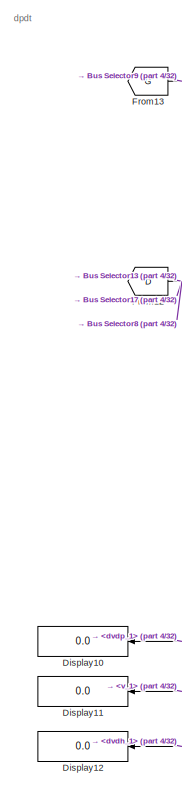
[diagram: root canvas - part 1/32, top right region]
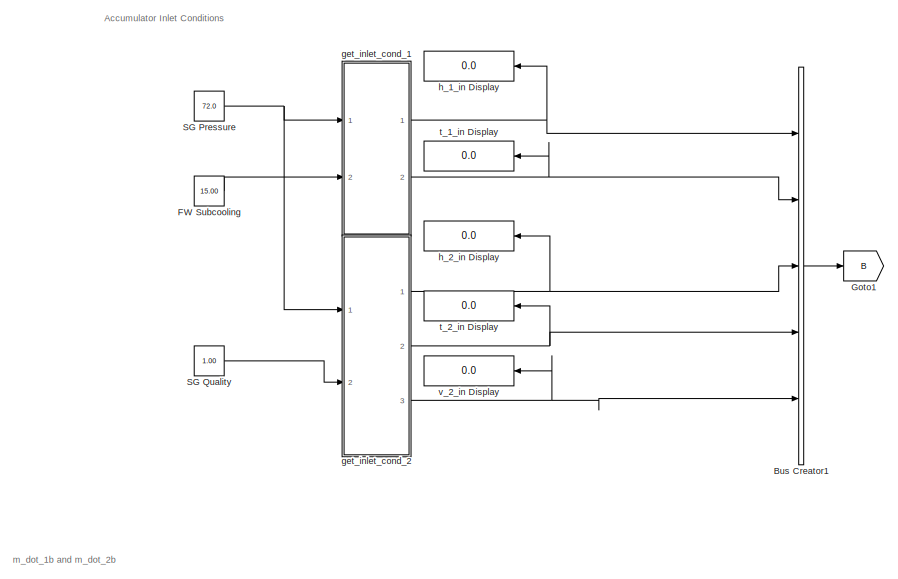
[diagram: root canvas - part 2/32, top left region]
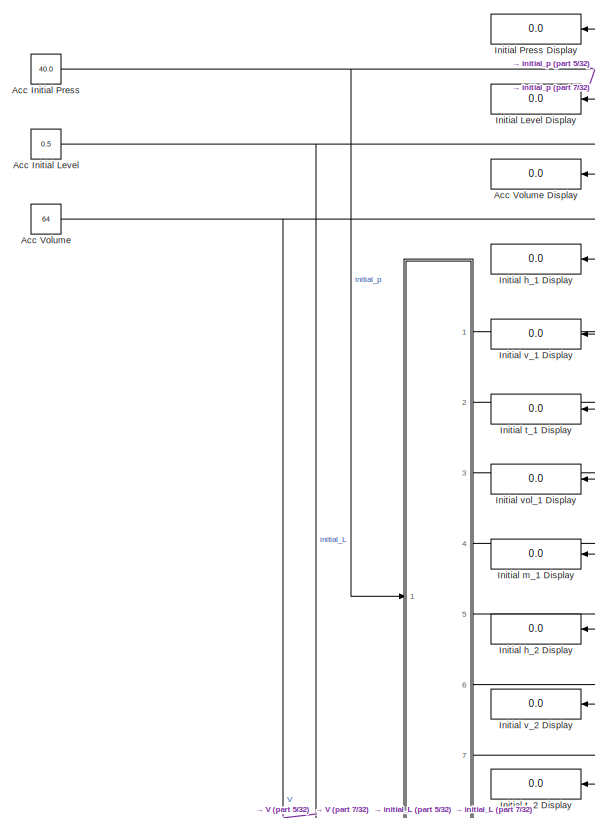
[diagram: root canvas - part 3/32, top left region]
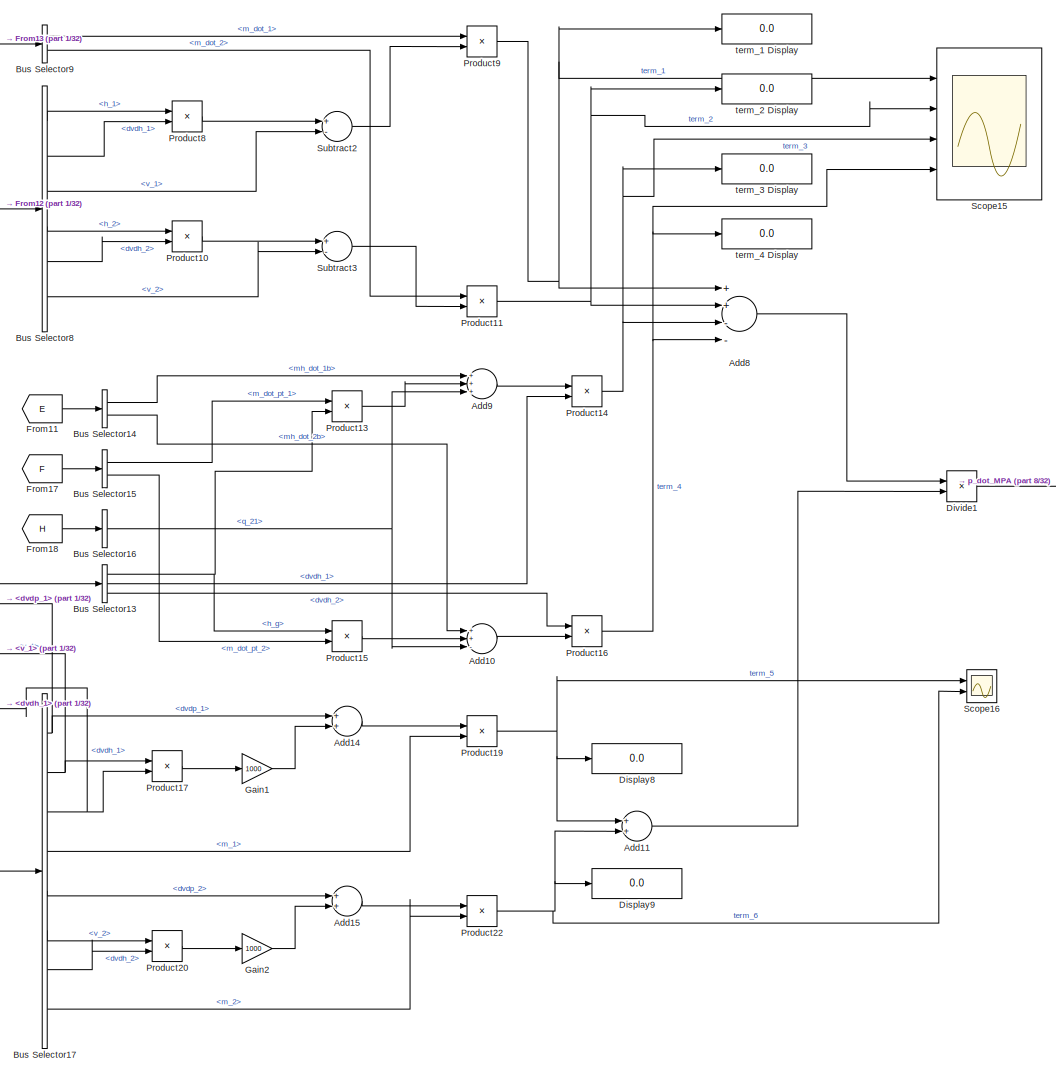
[diagram: root canvas - part 4/32, top right region]
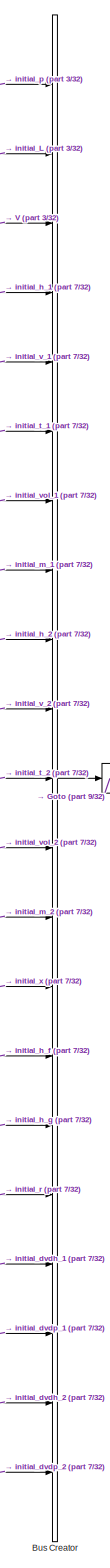
[diagram: root canvas - part 5/32, top left region]
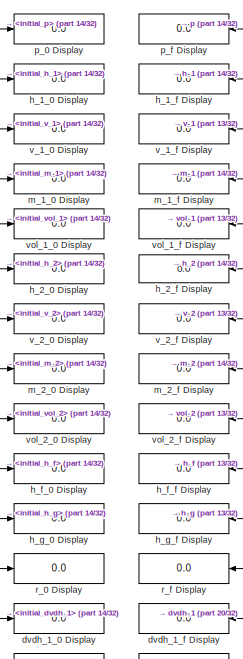
[diagram: root canvas - part 6/32, top center region]
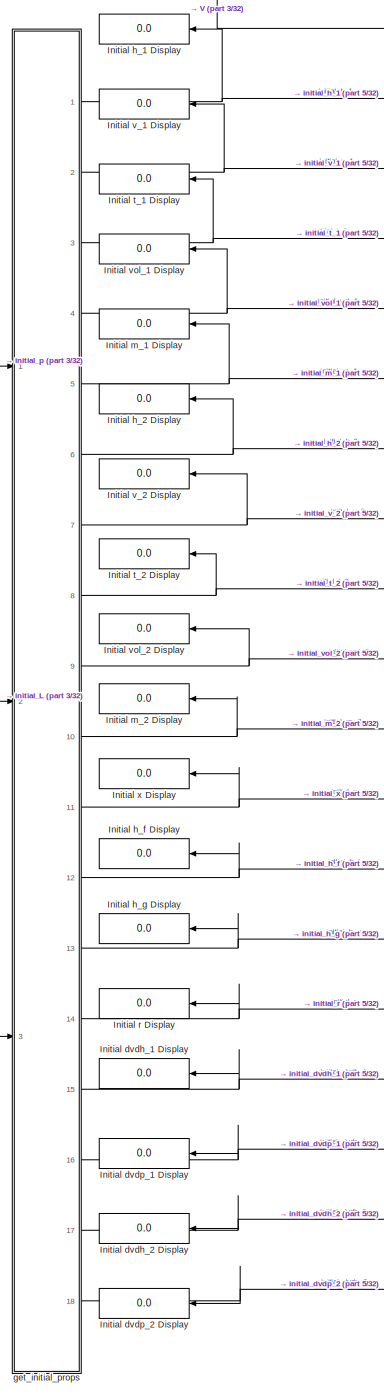
[diagram: root canvas - part 7/32, top left region]
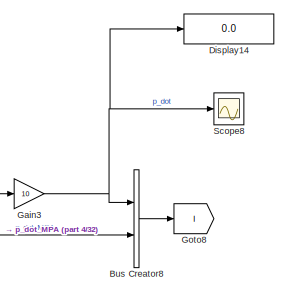
[diagram: root canvas - part 8/32, top right region]
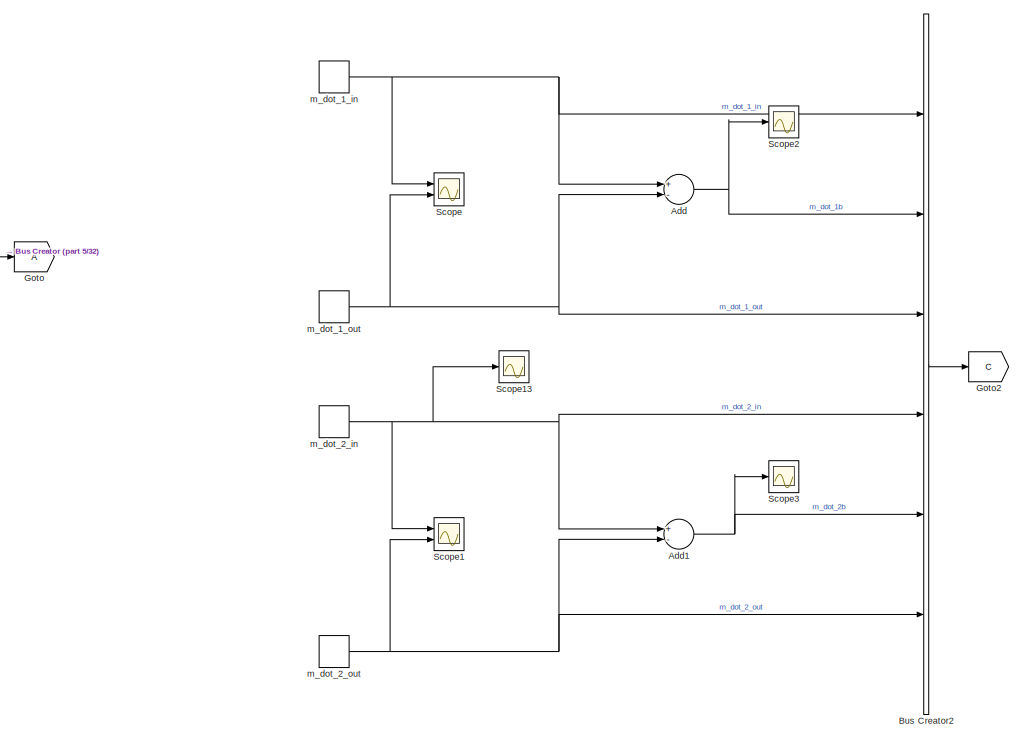
[diagram: root canvas - part 9/32, top left region]
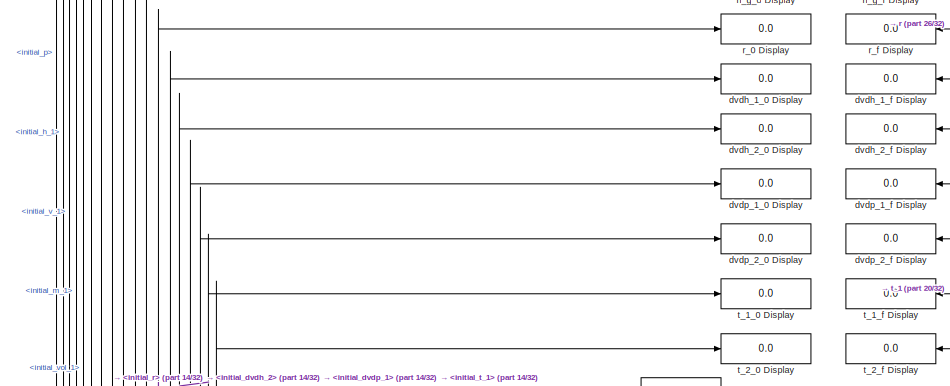
[diagram: root canvas - part 10/32, top center region]
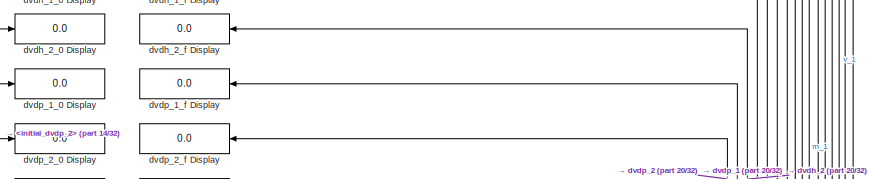
[diagram: root canvas - part 11/32, top center region]
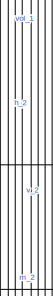
[diagram: root canvas - part 12/32, top center region]
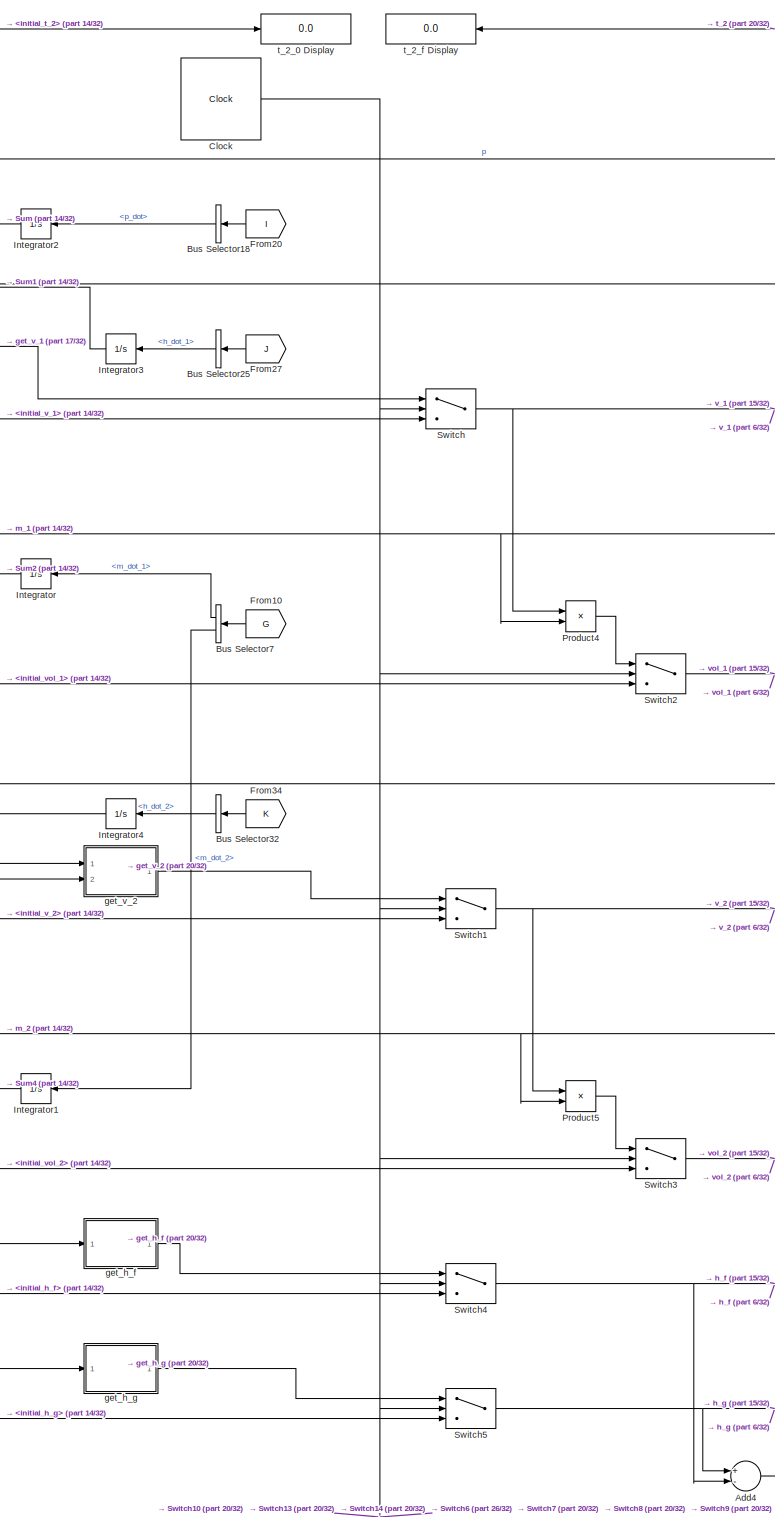
[diagram: root canvas - part 13/32, central region]
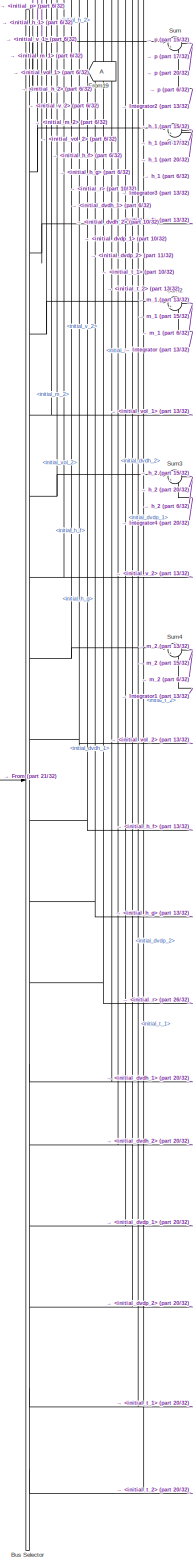
[diagram: root canvas - part 14/32, central region]
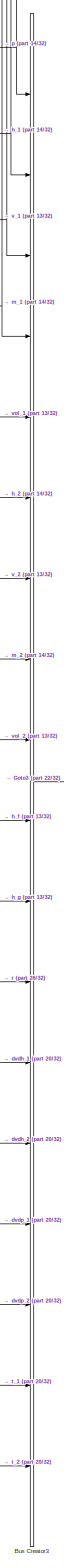
[diagram: root canvas - part 15/32, middle right region]
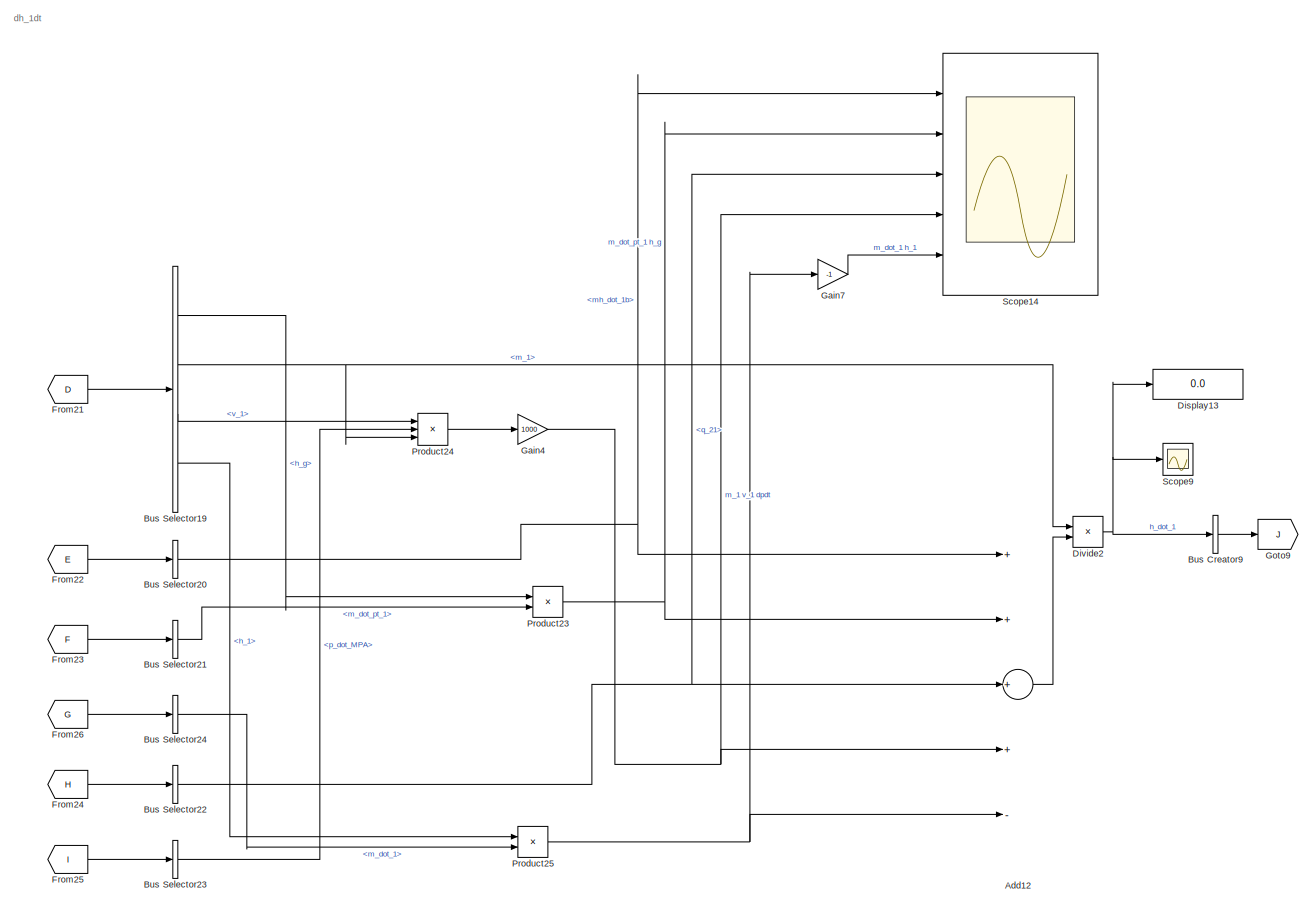
[diagram: root canvas - part 16/32, middle right region]
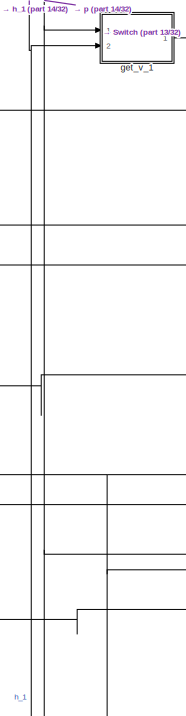
[diagram: root canvas - part 17/32, central region]
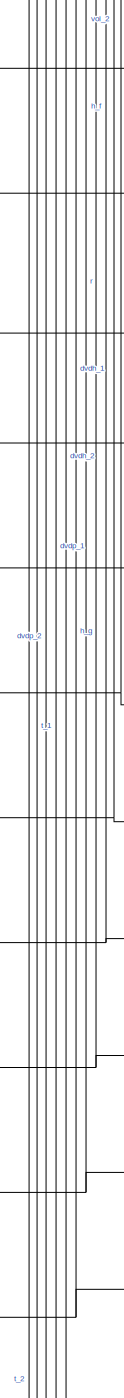
[diagram: root canvas - part 18/32, central region]
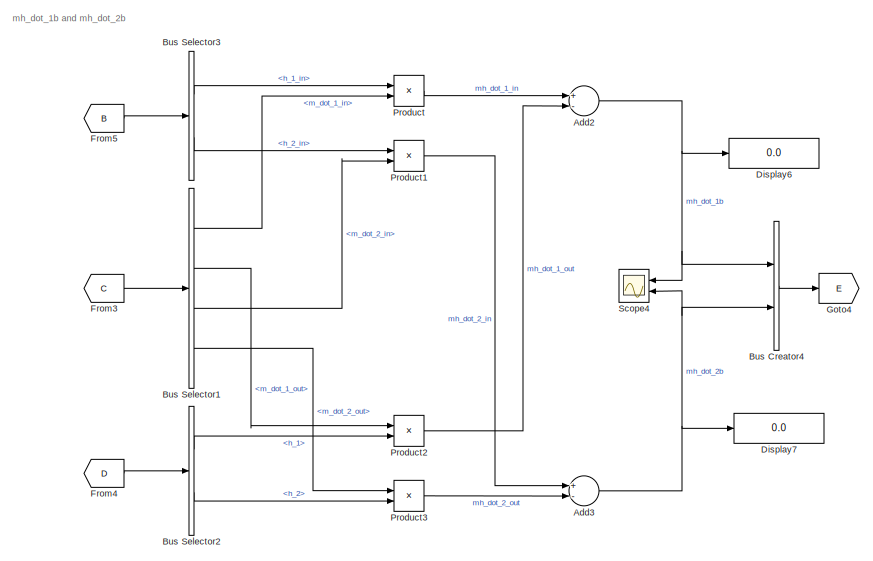
[diagram: root canvas - part 19/32, middle left region]
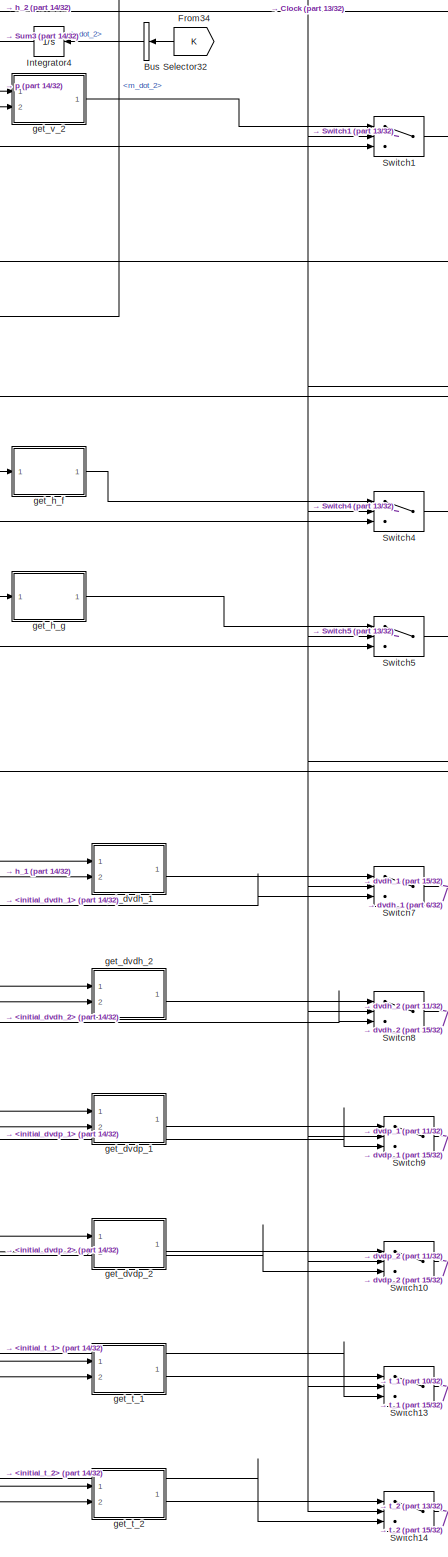
[diagram: root canvas - part 20/32, central region]
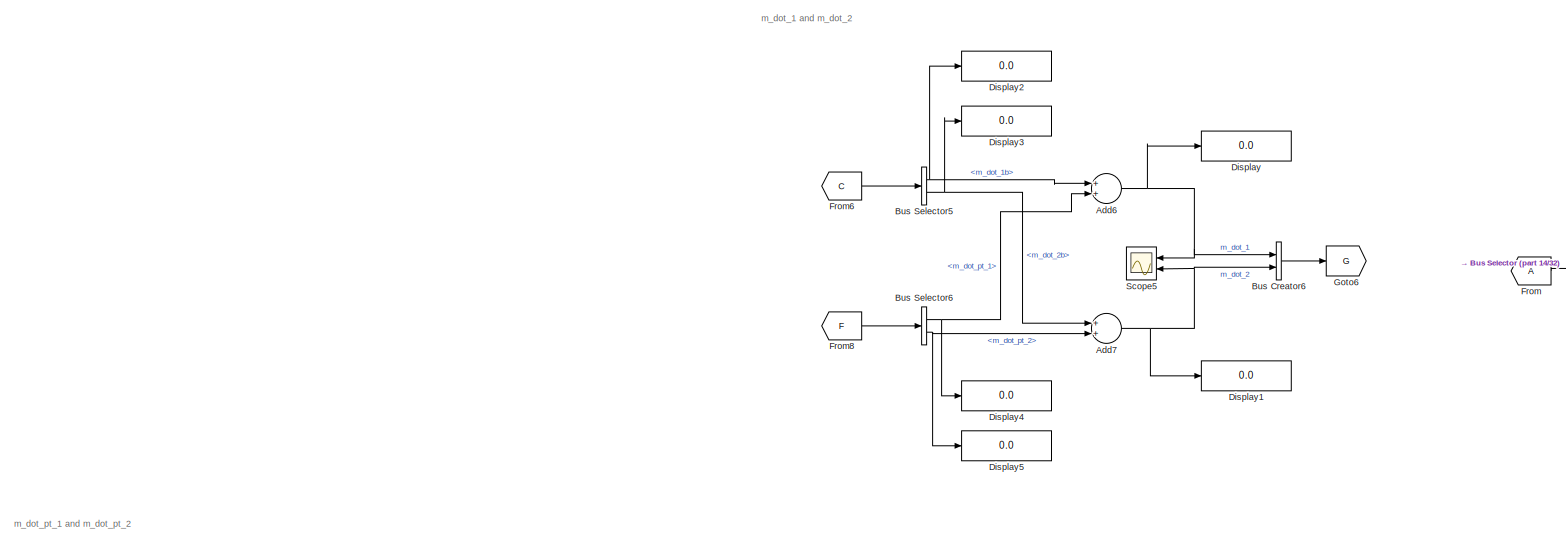
[diagram: root canvas - part 21/32, middle left region]
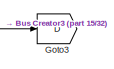
[diagram: root canvas - part 22/32, middle right region]
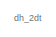
[diagram: root canvas - part 23/32, middle right region]
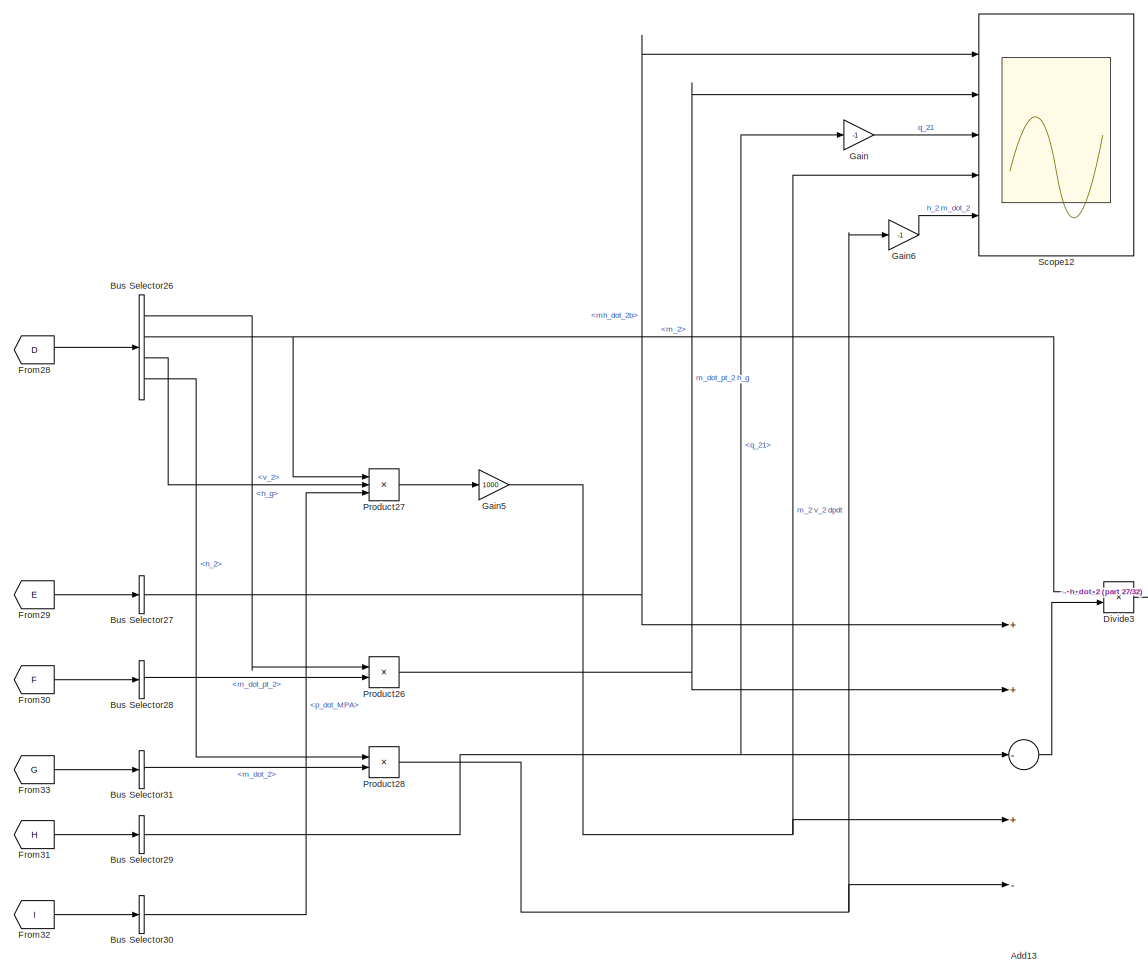
[diagram: root canvas - part 24/32, middle right region]
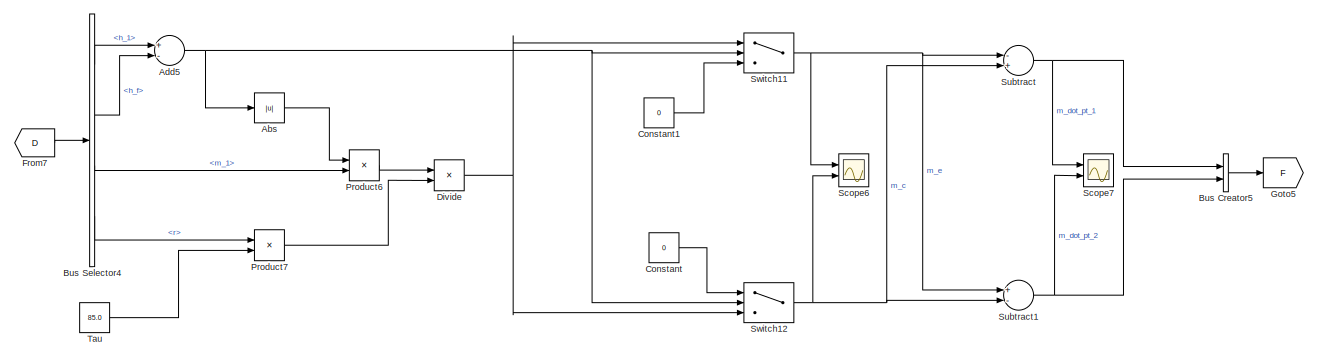
[diagram: root canvas - part 25/32, middle left region]
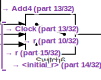
[diagram: root canvas - part 26/32, central region]
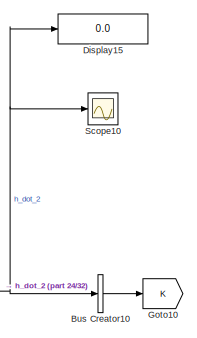
[diagram: root canvas - part 27/32, middle right region]
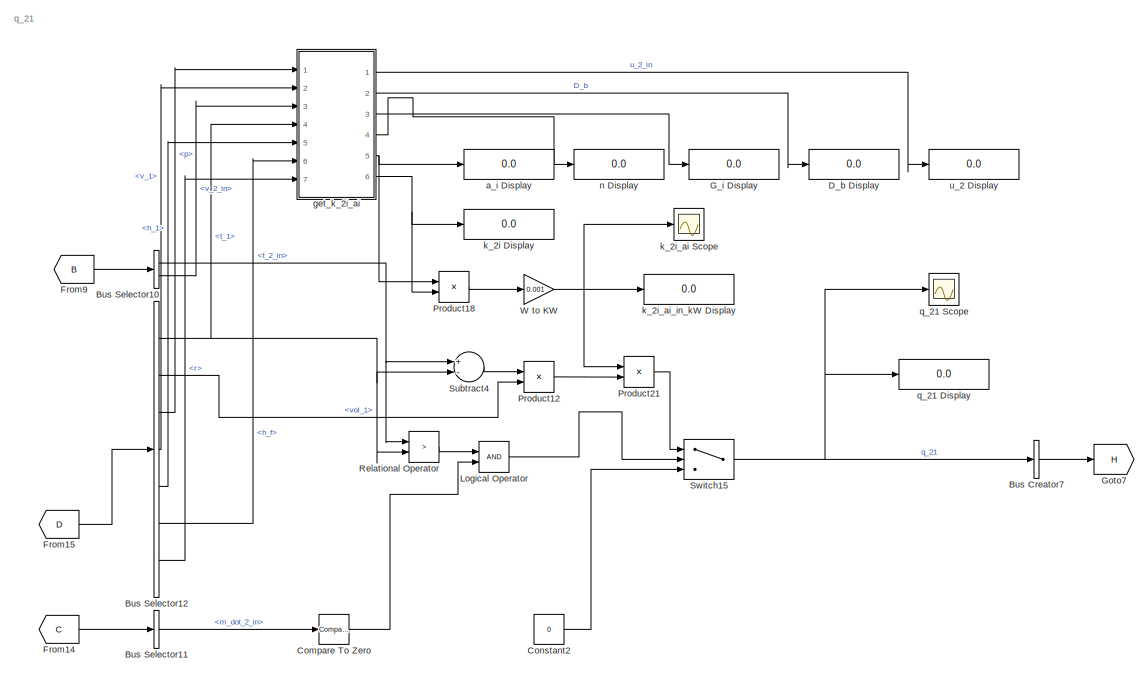
[diagram: root canvas - part 28/32, bottom left region]
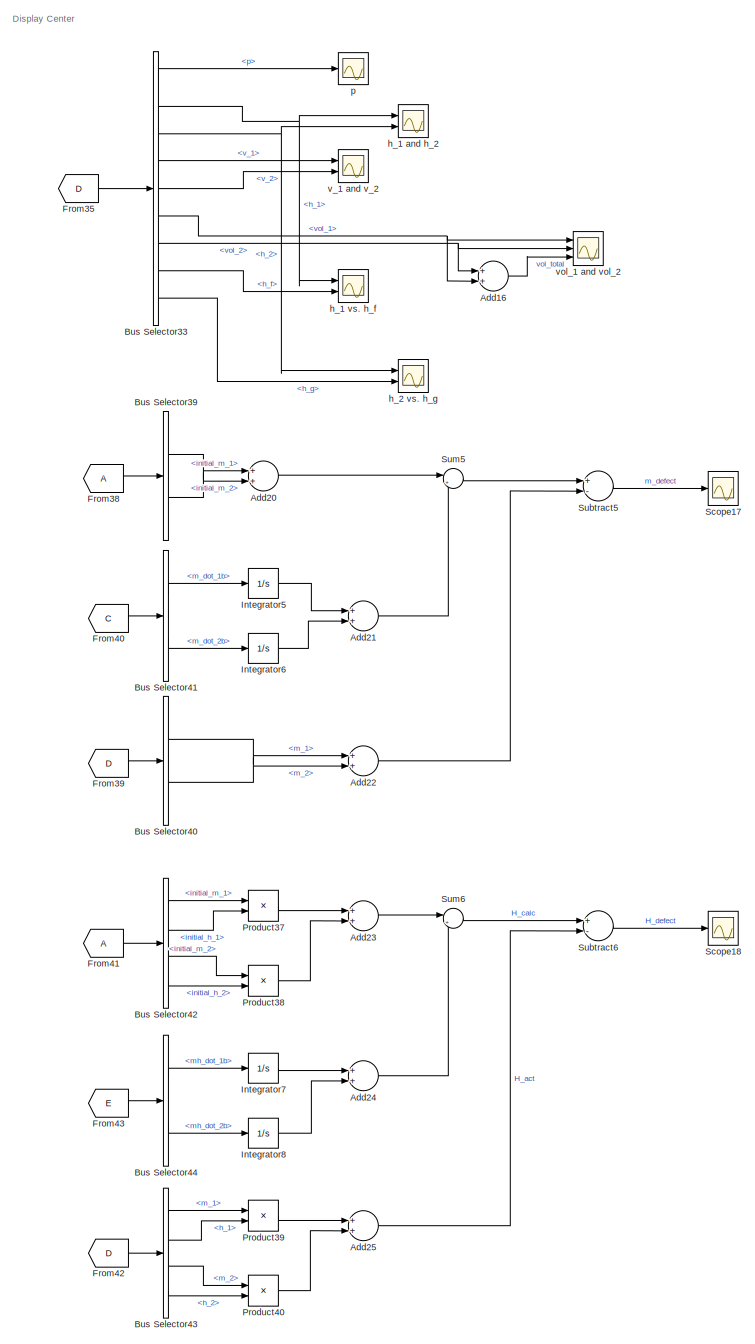
[diagram: root canvas - part 29/32, bottom right region]
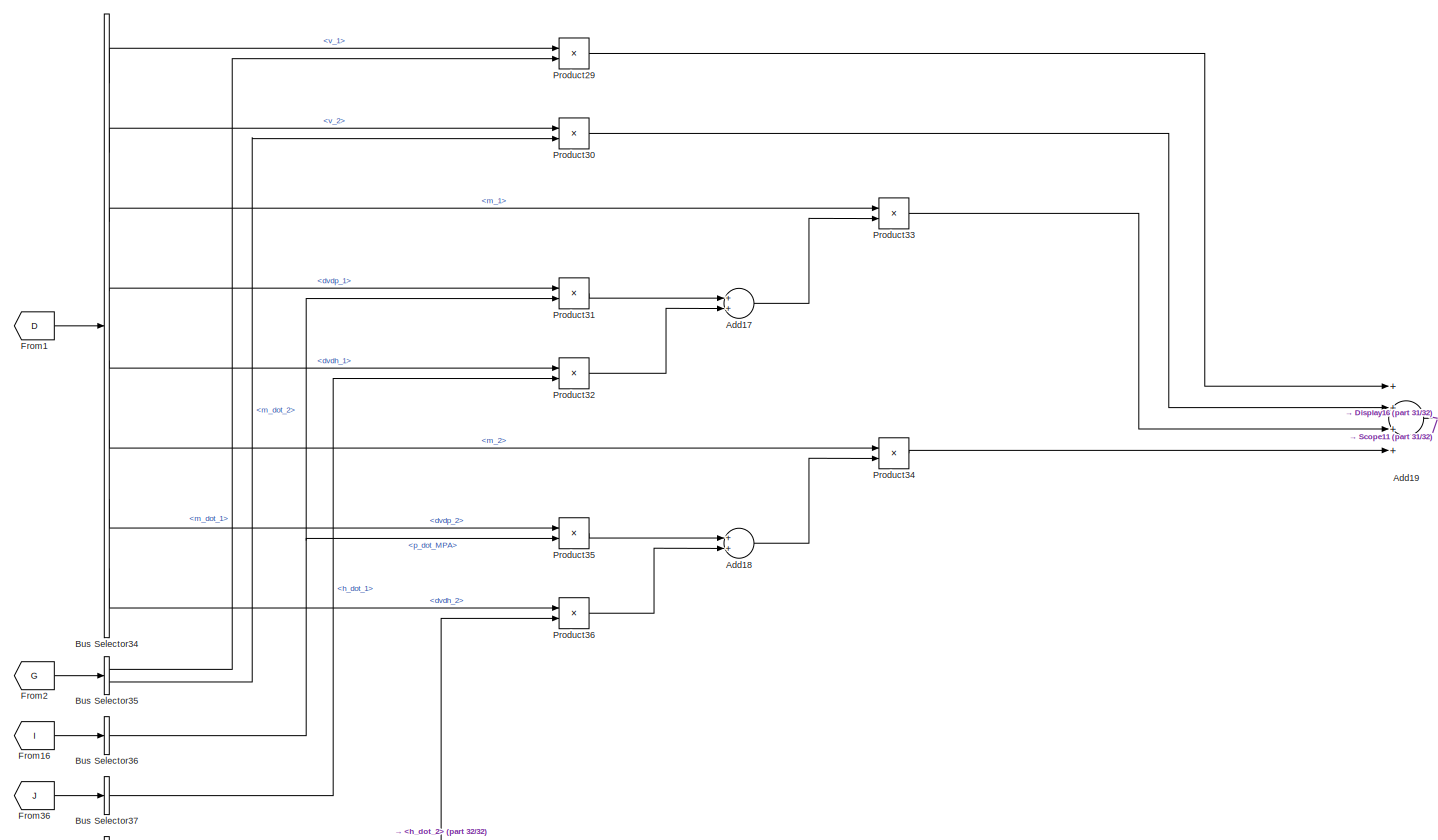
[diagram: root canvas - part 30/32, bottom center region]
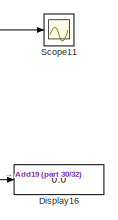
[diagram: root canvas - part 31/32, bottom center region]
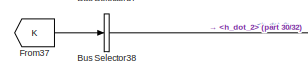
[diagram: root canvas - part 32/32, bottom center region]
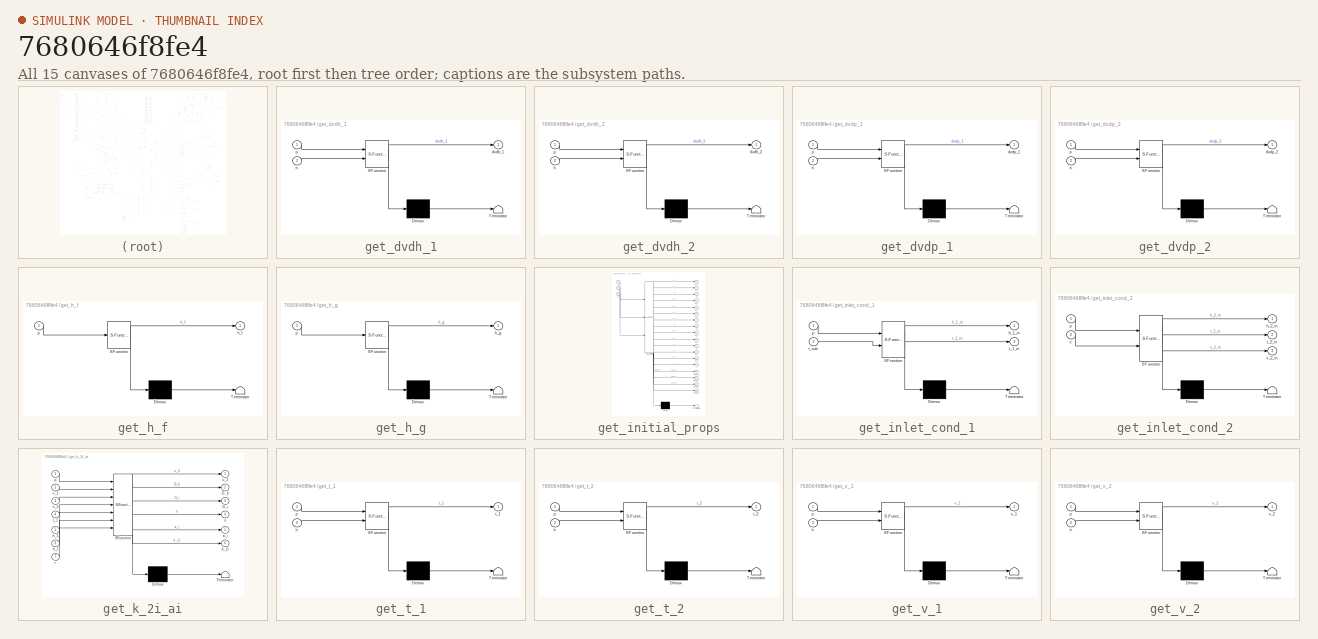
[diagram: thumbnail index - all 15 canvases of the model, root first then tree order]
MODEL slx_7680646f8fe4
KIND model
CONFIG AbsTol = auto
CONFIG EnableMultiTasking = off
CONFIG FixedStep = 0.1
CONFIG MaxStep = auto
CONFIG MinStep = auto
CONFIG RelTol = 1e-3
CONFIG SampleTimeConstraint = Unconstrained
CONFIG Solver = VariableStepAuto
CONFIG SolverName = VariableStepAuto
CONFIG StartTime = 0.0
CONFIG StopTime = 1800
BLOCK [Display]  G_i Display
  Decimation = 1
  Ports = [1]
BLOCK [Abs] Abs
  SaturateOnIntegerOverflow = off
BLOCK [Constant] Acc Initial Level
  Value = 0.5
BLOCK [Constant] Acc Initial Press
  Value = 40.0
BLOCK [Constant] Acc Volume
  Value = 64
BLOCK [Display] Acc Volume Display
  Decimation = 1
  Ports = [1]
BLOCK [Sum] Add
  InputSameDT = off
  Inputs = +-
  OutDataTypeStr = Inherit: Inherit via internal rule
  Ports = [2, 1]
  SaturateOnIntegerOverflow = off
BLOCK [Sum] Add1
  InputSameDT = off
  Inputs = +-
  OutDataTypeStr = Inherit: Inherit via internal rule
  Ports = [2, 1]
  SaturateOnIntegerOverflow = off
BLOCK [Sum] Add10
  InputSameDT = off
  Inputs = ++-
  OutDataTypeStr = Inherit: Inherit via internal rule
  Ports = [3, 1]
  SaturateOnIntegerOverflow = off
BLOCK [Sum] Add11
  InputSameDT = off
  OutDataTypeStr = Inherit: Inherit via internal rule
  Ports = [2, 1]
  SaturateOnIntegerOverflow = off
BLOCK [Sum] Add12
  InputSameDT = off
  Inputs = ++++-
  OutDataTypeStr = Inherit: Inherit via internal rule
  Ports = [5, 1]
  SaturateOnIntegerOverflow = off
BLOCK [Sum] Add13
  InputSameDT = off
  Inputs = ++-+-
  OutDataTypeStr = Inherit: Inherit via internal rule
  Ports = [5, 1]
  SaturateOnIntegerOverflow = off
BLOCK [Sum] Add14
  InputSameDT = off
  OutDataTypeStr = Inherit: Inherit via internal rule
  Ports = [2, 1]
  SaturateOnIntegerOverflow = off
BLOCK [Sum] Add15
  InputSameDT = off
  OutDataTypeStr = Inherit: Inherit via internal rule
  Ports = [2, 1]
  SaturateOnIntegerOverflow = off
BLOCK [Sum] Add16
  InputSameDT = off
  OutDataTypeStr = Inherit: Inherit via internal rule
  Ports = [2, 1]
  SaturateOnIntegerOverflow = off
BLOCK [Sum] Add17
  InputSameDT = off
  OutDataTypeStr = Inherit: Inherit via internal rule
  Ports = [2, 1]
  SaturateOnIntegerOverflow = off
BLOCK [Sum] Add18
  InputSameDT = off
  OutDataTypeStr = Inherit: Inherit via internal rule
  Ports = [2, 1]
  SaturateOnIntegerOverflow = off
BLOCK [Sum] Add19
  InputSameDT = off
  Inputs = ++++
  OutDataTypeStr = Inherit: Inherit via internal rule
  Ports = [4, 1]
  SaturateOnIntegerOverflow = off
BLOCK [Sum] Add2
  InputSameDT = off
  Inputs = +-
  OutDataTypeStr = Inherit: Inherit via internal rule
  Ports = [2, 1]
  SaturateOnIntegerOverflow = off
BLOCK [Sum] Add20
  InputSameDT = off
  OutDataTypeStr = Inherit: Inherit via internal rule
  Ports = [2, 1]
  SaturateOnIntegerOverflow = off
BLOCK [Sum] Add21
  InputSameDT = off
  OutDataTypeStr = Inherit: Inherit via internal rule
  Ports = [2, 1]
  SaturateOnIntegerOverflow = off
BLOCK [Sum] Add22
  InputSameDT = off
  OutDataTypeStr = Inherit: Inherit via internal rule
  Ports = [2, 1]
  SaturateOnIntegerOverflow = off
BLOCK [Sum] Add23
  InputSameDT = off
  OutDataTypeStr = Inherit: Inherit via internal rule
  Ports = [2, 1]
  SaturateOnIntegerOverflow = off
BLOCK [Sum] Add24
  InputSameDT = off
  OutDataTypeStr = Inherit: Inherit via internal rule
  Ports = [2, 1]
  SaturateOnIntegerOverflow = off
BLOCK [Sum] Add25
  InputSameDT = off
  OutDataTypeStr = Inherit: Inherit via internal rule
  Ports = [2, 1]
  SaturateOnIntegerOverflow = off
BLOCK [Sum] Add3
  InputSameDT = off
  Inputs = +-
  OutDataTypeStr = Inherit: Inherit via internal rule
  Ports = [2, 1]
  SaturateOnIntegerOverflow = off
BLOCK [Sum] Add4
  InputSameDT = off
  Inputs = +-
  OutDataTypeStr = Inherit: Inherit via internal rule
  Ports = [2, 1]
  SaturateOnIntegerOverflow = off
BLOCK [Sum] Add5
  InputSameDT = off
  Inputs = +-
  OutDataTypeStr = Inherit: Inherit via internal rule
  Ports = [2, 1]
  SaturateOnIntegerOverflow = off
BLOCK [Sum] Add6
  InputSameDT = off
  OutDataTypeStr = Inherit: Inherit via internal rule
  Ports = [2, 1]
  SaturateOnIntegerOverflow = off
BLOCK [Sum] Add7
  InputSameDT = off
  OutDataTypeStr = Inherit: Inherit via internal rule
  Ports = [2, 1]
  SaturateOnIntegerOverflow = off
BLOCK [Sum] Add8
  InputSameDT = off
  Inputs = ++--
  OutDataTypeStr = Inherit: Inherit via internal rule
  Ports = [4, 1]
  SaturateOnIntegerOverflow = off
BLOCK [Sum] Add9
  InputSameDT = off
  Inputs = +++
  OutDataTypeStr = Inherit: Inherit via internal rule
  Ports = [3, 1]
  SaturateOnIntegerOverflow = off
BLOCK [BusCreator] Bus Creator
  DisplayOption = bar
  InheritFromInputs = on
  Inputs = 21
  Ports = [21, 1]
BLOCK [BusCreator] Bus Creator1
  DisplayOption = bar
  InheritFromInputs = on
  Inputs = 5
  Ports = [5, 1]
BLOCK [BusCreator] Bus Creator10
  DisplayOption = bar
  InheritFromInputs = on
  Inputs = 1
  Ports = [1, 1]
BLOCK [BusCreator] Bus Creator2
  DisplayOption = bar
  InheritFromInputs = on
  Inputs = 6
  Ports = [6, 1]
BLOCK [BusCreator] Bus Creator3
  DisplayOption = bar
  InheritFromInputs = on
  Inputs = 18
  Ports = [18, 1]
BLOCK [BusCreator] Bus Creator4
  DisplayOption = bar
  InheritFromInputs = on
  Inputs = 2
  Ports = [2, 1]
BLOCK [BusCreator] Bus Creator5
  DisplayOption = bar
  InheritFromInputs = on
  Inputs = 2
  Ports = [2, 1]
BLOCK [BusCreator] Bus Creator6
  DisplayOption = bar
  InheritFromInputs = on
  Inputs = 2
  Ports = [2, 1]
BLOCK [BusCreator] Bus Creator7
  DisplayOption = bar
  InheritFromInputs = on
  Inputs = 1
  Ports = [1, 1]
BLOCK [BusCreator] Bus Creator8
  DisplayOption = bar
  InheritFromInputs = on
  Inputs = 2
  Ports = [2, 1]
BLOCK [BusCreator] Bus Creator9
  DisplayOption = bar
  InheritFromInputs = on
  Inputs = 1
  Ports = [1, 1]
BLOCK [BusSelector] Bus Selector
  OutputSignals = initial_p,initial_h_1,initial_v_1,initial_m_1,initial_vol_1,initial_h_2,initial_v_2,initial_m_2,initial_vol_2,initial_h_f,initial_h_g,initial_r,initial_dvdh_1,initial_dvdh_2,initial_dvdp_1,initial_dvdp_2,initial_t_1,initial_t_2
  Ports = [1, 18]
BLOCK [BusSelector] Bus Selector1
  OutputSignals = m_dot_1_in,m_dot_1_out,m_dot_2_in,m_dot_2_out
  Ports = [1, 4]
BLOCK [BusSelector] Bus Selector10
  OutputSignals = t_2_in,v_2_in
  Ports = [1, 2]
BLOCK [BusSelector] Bus Selector11
  OutputSignals = m_dot_2_in
  Ports = [1, 1]
BLOCK [BusSelector] Bus Selector12
  OutputSignals = t_1,vol_1,p,v_1,h_1,h_f,r
  Ports = [1, 7]
BLOCK [BusSelector] Bus Selector13
  OutputSignals = h_g,dvdh_1,dvdh_2
  Ports = [1, 3]
BLOCK [BusSelector] Bus Selector14
  OutputSignals = mh_dot_1b,mh_dot_2b
  Ports = [1, 2]
BLOCK [BusSelector] Bus Selector15
  OutputSignals = m_dot_pt_1,m_dot_pt_2
  Ports = [1, 2]
BLOCK [BusSelector] Bus Selector16
  OutputSignals = q_21
  Ports = [1, 1]
BLOCK [BusSelector] Bus Selector17
  OutputSignals = dvdp_1,v_1,dvdh_1,m_1,dvdp_2,v_2,dvdh_2,m_2
  Ports = [1, 8]
BLOCK [BusSelector] Bus Selector18
  OutputSignals = p_dot
  Ports = [1, 1]
BLOCK [BusSelector] Bus Selector19
  OutputSignals = h_g,m_1,v_1,h_1
  Ports = [1, 4]
BLOCK [BusSelector] Bus Selector2
  OutputSignals = h_1,h_2
  Ports = [1, 2]
BLOCK [BusSelector] Bus Selector20
  OutputSignals = mh_dot_1b
  Ports = [1, 1]
BLOCK [BusSelector] Bus Selector21
  OutputSignals = m_dot_pt_1
  Ports = [1, 1]
BLOCK [BusSelector] Bus Selector22
  OutputSignals = q_21
  Ports = [1, 1]
BLOCK [BusSelector] Bus Selector23
  OutputSignals = p_dot_MPA
  Ports = [1, 1]
BLOCK [BusSelector] Bus Selector24
  OutputSignals = m_dot_1
  Ports = [1, 1]
BLOCK [BusSelector] Bus Selector25
  OutputSignals = h_dot_1
  Ports = [1, 1]
BLOCK [BusSelector] Bus Selector26
  OutputSignals = h_g,m_2,v_2,h_2
  Ports = [1, 4]
BLOCK [BusSelector] Bus Selector27
  OutputSignals = mh_dot_2b
  Ports = [1, 1]
BLOCK [BusSelector] Bus Selector28
  OutputSignals = m_dot_pt_2
  Ports = [1, 1]
BLOCK [BusSelector] Bus Selector29
  OutputSignals = q_21
  Ports = [1, 1]
BLOCK [BusSelector] Bus Selector3
  OutputSignals = h_1_in,h_2_in
  Ports = [1, 2]
BLOCK [BusSelector] Bus Selector30
  OutputSignals = p_dot_MPA
  Ports = [1, 1]
BLOCK [BusSelector] Bus Selector31
  OutputSignals = m_dot_2
  Ports = [1, 1]
BLOCK [BusSelector] Bus Selector32
  OutputSignals = h_dot_2
  Ports = [1, 1]
BLOCK [BusSelector] Bus Selector33
  OutputSignals = p,h_1,h_2,v_1,v_2,vol_1,vol_2,h_f,h_g
  Ports = [1, 9]
BLOCK [BusSelector] Bus Selector34
  OutputSignals = v_1,v_2,m_1,dvdp_1,dvdh_1,m_2,dvdp_2,dvdh_2
  Ports = [1, 8]
BLOCK [BusSelector] Bus Selector35
  OutputSignals = m_dot_1,m_dot_2
  Ports = [1, 2]
BLOCK [BusSelector] Bus Selector36
  OutputSignals = p_dot_MPA
  Ports = [1, 1]
BLOCK [BusSelector] Bus Selector37
  OutputSignals = h_dot_1
  Ports = [1, 1]
BLOCK [BusSelector] Bus Selector38
  OutputSignals = h_dot_2
  Ports = [1, 1]
BLOCK [BusSelector] Bus Selector39
  OutputSignals = initial_m_1,initial_m_2
  Ports = [1, 2]
BLOCK [BusSelector] Bus Selector4
  OutputSignals = h_1,h_f,m_1,r
  Ports = [1, 4]
BLOCK [BusSelector] Bus Selector40
  OutputSignals = m_1,m_2
  Ports = [1, 2]
BLOCK [BusSelector] Bus Selector41
  OutputSignals = m_dot_1b,m_dot_2b
  Ports = [1, 2]
BLOCK [BusSelector] Bus Selector42
  OutputSignals = initial_m_1,initial_h_1,initial_m_2,initial_h_2
  Ports = [1, 4]
BLOCK [BusSelector] Bus Selector43
  OutputSignals = m_1,h_1,m_2,h_2
  Ports = [1, 4]
BLOCK [BusSelector] Bus Selector44
  OutputSignals = mh_dot_1b,mh_dot_2b
  Ports = [1, 2]
BLOCK [BusSelector] Bus Selector5
  OutputSignals = m_dot_1b,m_dot_2b
  Ports = [1, 2]
BLOCK [BusSelector] Bus Selector6
  OutputSignals = m_dot_pt_1,m_dot_pt_2
  Ports = [1, 2]
BLOCK [BusSelector] Bus Selector7
  OutputSignals = m_dot_1,m_dot_2
  Ports = [1, 2]
BLOCK [BusSelector] Bus Selector8
  OutputSignals = h_1,dvdh_1,v_1,h_2,dvdh_2,v_2
  Ports = [1, 6]
BLOCK [BusSelector] Bus Selector9
  OutputSignals = m_dot_1,m_dot_2
  Ports = [1, 2]
BLOCK [Clock] Clock
  DisplayTime = on
BLOCK [Reference] Compare To Zero  REF=simulink/Logic and Bit
Operations/Compare
To Zero
  Ports = [1, 1]
  SourceBlock = simulink/Logic and Bit\nOperations/Compare\nTo Zero
  SourceType = Compare To Zero
BLOCK [Constant] Constant
  Value = 0
BLOCK [Constant] Constant1
  Value = 0
BLOCK [Constant] Constant2
  Value = 0
BLOCK [Display] D_b Display
  Decimation = 1
  Ports = [1]
BLOCK [Display] Display
  Decimation = 1
  Ports = [1]
BLOCK [Display] Display1
  Decimation = 1
  Ports = [1]
BLOCK [Display] Display10
  Decimation = 1
  Ports = [1]
BLOCK [Display] Display11
  Decimation = 1
  Ports = [1]
BLOCK [Display] Display12
  Decimation = 1
  Ports = [1]
BLOCK [Display] Display13
  Decimation = 1
  Ports = [1]
BLOCK [Display] Display14
  Decimation = 1
  Ports = [1]
BLOCK [Display] Display15
  Decimation = 1
  Ports = [1]
BLOCK [Display] Display16
  Decimation = 1
  Ports = [1]
BLOCK [Display] Display2
  Decimation = 1
  Ports = [1]
BLOCK [Display] Display3
  Decimation = 1
  Ports = [1]
BLOCK [Display] Display4
  Decimation = 1
  Ports = [1]
BLOCK [Display] Display5
  Decimation = 1
  Ports = [1]
BLOCK [Display] Display6
  Decimation = 1
  Ports = [1]
BLOCK [Display] Display7
  Decimation = 1
  Ports = [1]
BLOCK [Display] Display8
  Decimation = 1
  Ports = [1]
BLOCK [Display] Display9
  Decimation = 1
  Ports = [1]
BLOCK [Product] Divide
  InputSameDT = off
  Inputs = */
  OutDataTypeStr = Inherit: Inherit via internal rule
  Ports = [2, 1]
  RndMeth = Floor
  SaturateOnIntegerOverflow = off
BLOCK [Product] Divide1
  InputSameDT = off
  Inputs = */
  OutDataTypeStr = Inherit: Inherit via internal rule
  Ports = [2, 1]
  RndMeth = Floor
  SaturateOnIntegerOverflow = off
BLOCK [Product] Divide2
  InputSameDT = off
  Inputs = /*
  OutDataTypeStr = Inherit: Inherit via internal rule
  Ports = [2, 1]
  RndMeth = Floor
  SaturateOnIntegerOverflow = off
BLOCK [Product] Divide3
  InputSameDT = off
  Inputs = /*
  OutDataTypeStr = Inherit: Inherit via internal rule
  Ports = [2, 1]
  RndMeth = Floor
  SaturateOnIntegerOverflow = off
BLOCK [Constant] FW Subcooling
  Value = 15.00
BLOCK [From] From
BLOCK [From] From1
  GotoTag = D
BLOCK [From] From10
  GotoTag = G
BLOCK [From] From11
  GotoTag = E
BLOCK [From] From12
  GotoTag = D
BLOCK [From] From13
  GotoTag = G
BLOCK [From] From14
  GotoTag = C
BLOCK [From] From15
  GotoTag = D
BLOCK [From] From16
  GotoTag = I
BLOCK [From] From17
  GotoTag = F
BLOCK [From] From18
  GotoTag = H
BLOCK [From] From19
BLOCK [From] From2
  GotoTag = G
BLOCK [From] From20
  GotoTag = I
BLOCK [From] From21
  GotoTag = D
BLOCK [From] From22
  GotoTag = E
BLOCK [From] From23
  GotoTag = F
BLOCK [From] From24
  GotoTag = H
BLOCK [From] From25
  GotoTag = I
BLOCK [From] From26
  GotoTag = G
BLOCK [From] From27
  GotoTag = J
BLOCK [From] From28
  GotoTag = D
BLOCK [From] From29
  GotoTag = E
BLOCK [From] From3
  GotoTag = C
BLOCK [From] From30
  GotoTag = F
BLOCK [From] From31
  GotoTag = H
BLOCK [From] From32
  GotoTag = I
BLOCK [From] From33
  GotoTag = G
BLOCK [From] From34
  GotoTag = K
BLOCK [From] From35
  GotoTag = D
BLOCK [From] From36
  GotoTag = J
BLOCK [From] From37
  GotoTag = K
BLOCK [From] From38
BLOCK [From] From39
  GotoTag = D
BLOCK [From] From4
  GotoTag = D
BLOCK [From] From40
  GotoTag = C
BLOCK [From] From41
BLOCK [From] From42
  GotoTag = D
BLOCK [From] From43
  GotoTag = E
BLOCK [From] From5
  GotoTag = B
BLOCK [From] From6
  GotoTag = C
BLOCK [From] From7
  GotoTag = D
BLOCK [From] From8
  GotoTag = F
BLOCK [From] From9
  GotoTag = B
BLOCK [Gain] Gain
  Gain = -1
  OutDataTypeStr = Inherit: Inherit via internal rule
  ParamDataTypeStr = Inherit: Inherit via internal rule
  SaturateOnIntegerOverflow = off
BLOCK [Gain] Gain1
  Gain = 1000
  OutDataTypeStr = Inherit: Inherit via internal rule
  ParamDataTypeStr = Inherit: Inherit via internal rule
  SaturateOnIntegerOverflow = off
BLOCK [Gain] Gain2
  Gain = 1000
  OutDataTypeStr = Inherit: Inherit via internal rule
  ParamDataTypeStr = Inherit: Inherit via internal rule
  SaturateOnIntegerOverflow = off
BLOCK [Gain] Gain3
  Gain = 10
  OutDataTypeStr = Inherit: Inherit via internal rule
  ParamDataTypeStr = Inherit: Inherit via internal rule
  SaturateOnIntegerOverflow = off
BLOCK [Gain] Gain4
  Gain = 1000
  OutDataTypeStr = Inherit: Inherit via internal rule
  ParamDataTypeStr = Inherit: Inherit via internal rule
  SaturateOnIntegerOverflow = off
BLOCK [Gain] Gain5
  Gain = 1000
  OutDataTypeStr = Inherit: Inherit via internal rule
  ParamDataTypeStr = Inherit: Inherit via internal rule
  SaturateOnIntegerOverflow = off
BLOCK [Gain] Gain6
  Gain = -1
  OutDataTypeStr = Inherit: Inherit via internal rule
  ParamDataTypeStr = Inherit: Inherit via internal rule
  SaturateOnIntegerOverflow = off
BLOCK [Gain] Gain7
  Gain = -1
  OutDataTypeStr = Inherit: Inherit via internal rule
  ParamDataTypeStr = Inherit: Inherit via internal rule
  SaturateOnIntegerOverflow = off
BLOCK [Goto] Goto
BLOCK [Goto] Goto1
  GotoTag = B
BLOCK [Goto] Goto10
  GotoTag = K
BLOCK [Goto] Goto2
  GotoTag = C
BLOCK [Goto] Goto3
  GotoTag = D
BLOCK [Goto] Goto4
  GotoTag = E
BLOCK [Goto] Goto5
  GotoTag = F
BLOCK [Goto] Goto6
  GotoTag = G
BLOCK [Goto] Goto7
  GotoTag = H
BLOCK [Goto] Goto8
  GotoTag = I
BLOCK [Goto] Goto9
  GotoTag = J
BLOCK [Display] Initial Level Display
  Decimation = 1
  Ports = [1]
BLOCK [Display] Initial Press Display
  Decimation = 1
  Ports = [1]
BLOCK [Display] Initial dvdh_1 Display
  Decimation = 1
  Format = short_e
  Ports = [1]
BLOCK [Display] Initial dvdh_2 Display
  Decimation = 1
  Format = short_e
  Ports = [1]
BLOCK [Display] Initial dvdp_1 Display
  Decimation = 1
  Format = short_e
  Ports = [1]
BLOCK [Display] Initial dvdp_2 Display
  Decimation = 1
  Format = short_e
  Ports = [1]
BLOCK [Display] Initial h_1 Display
  Decimation = 1
  Format = long
  Ports = [1]
BLOCK [Display] Initial h_2 Display
  Decimation = 1
  Format = long
  Ports = [1]
BLOCK [Display] Initial h_f Display
  Decimation = 1
  Format = long
  Ports = [1]
BLOCK [Display] Initial h_g Display
  Decimation = 1
  Format = long
  Ports = [1]
BLOCK [Display] Initial m_1 Display
  Decimation = 1
  Ports = [1]
BLOCK [Display] Initial m_2 Display
  Decimation = 1
  Format = short_e
  Ports = [1]
BLOCK [Display] Initial r Display
  Decimation = 1
  Format = long
  Ports = [1]
BLOCK [Display] Initial t_1 Display
  Decimation = 1
  Ports = [1]
BLOCK [Display] Initial t_2 Display
  Decimation = 1
  Ports = [1]
BLOCK [Display] Initial v_1 Display
  Decimation = 1
  Format = short_e
  Ports = [1]
BLOCK [Display] Initial v_2 Display
  Decimation = 1
  Format = short_e
  Ports = [1]
BLOCK [Display] Initial vol_1 Display
  Decimation = 1
  Ports = [1]
BLOCK [Display] Initial vol_2 Display
  Decimation = 1
  Ports = [1]
BLOCK [Display] Initial x Display
  Decimation = 1
  Ports = [1]
BLOCK [Integrator] Integrator
  Ports = [1, 1]
BLOCK [Integrator] Integrator1
  Ports = [1, 1]
BLOCK [Integrator] Integrator2
  Ports = [1, 1]
BLOCK [Integrator] Integrator3
  Ports = [1, 1]
BLOCK [Integrator] Integrator4
  Ports = [1, 1]
BLOCK [Integrator] Integrator5
  Ports = [1, 1]
BLOCK [Integrator] Integrator6
  Ports = [1, 1]
BLOCK [Integrator] Integrator7
  Ports = [1, 1]
BLOCK [Integrator] Integrator8
  Ports = [1, 1]
BLOCK [Logic] Logical Operator
  AllPortsSameDT = off
  OutDataTypeStr = boolean
  Ports = [2, 1]
BLOCK [Product] Product
  InputSameDT = off
  OutDataTypeStr = Inherit: Inherit via internal rule
  Ports = [2, 1]
  RndMeth = Floor
  SaturateOnIntegerOverflow = off
BLOCK [Product] Product1
  InputSameDT = off
  OutDataTypeStr = Inherit: Inherit via internal rule
  Ports = [2, 1]
  RndMeth = Floor
  SaturateOnIntegerOverflow = off
BLOCK [Product] Product10
  InputSameDT = off
  OutDataTypeStr = Inherit: Inherit via internal rule
  Ports = [2, 1]
  RndMeth = Floor
  SaturateOnIntegerOverflow = off
BLOCK [Product] Product11
  InputSameDT = off
  OutDataTypeStr = Inherit: Inherit via internal rule
  Ports = [2, 1]
  RndMeth = Floor
  SaturateOnIntegerOverflow = off
BLOCK [Product] Product12
  InputSameDT = off
  OutDataTypeStr = Inherit: Inherit via internal rule
  Ports = [2, 1]
  RndMeth = Floor
  SaturateOnIntegerOverflow = off
BLOCK [Product] Product13
  InputSameDT = off
  OutDataTypeStr = Inherit: Inherit via internal rule
  Ports = [2, 1]
  RndMeth = Floor
  SaturateOnIntegerOverflow = off
BLOCK [Product] Product14
  InputSameDT = off
  OutDataTypeStr = Inherit: Inherit via internal rule
  Ports = [2, 1]
  RndMeth = Floor
  SaturateOnIntegerOverflow = off
BLOCK [Product] Product15
  InputSameDT = off
  OutDataTypeStr = Inherit: Inherit via internal rule
  Ports = [2, 1]
  RndMeth = Floor
  SaturateOnIntegerOverflow = off
BLOCK [Product] Product16
  InputSameDT = off
  OutDataTypeStr = Inherit: Inherit via internal rule
  Ports = [2, 1]
  RndMeth = Floor
  SaturateOnIntegerOverflow = off
BLOCK [Product] Product17
  InputSameDT = off
  OutDataTypeStr = Inherit: Inherit via internal rule
  Ports = [2, 1]
  RndMeth = Floor
  SaturateOnIntegerOverflow = off
BLOCK [Product] Product18
  InputSameDT = off
  OutDataTypeStr = Inherit: Inherit via internal rule
  Ports = [2, 1]
  RndMeth = Floor
  SaturateOnIntegerOverflow = off
BLOCK [Product] Product19
  InputSameDT = off
  OutDataTypeStr = Inherit: Inherit via internal rule
  Ports = [2, 1]
  RndMeth = Floor
  SaturateOnIntegerOverflow = off
BLOCK [Product] Product2
  InputSameDT = off
  OutDataTypeStr = Inherit: Inherit via internal rule
  Ports = [2, 1]
  RndMeth = Floor
  SaturateOnIntegerOverflow = off
BLOCK [Product] Product20
  InputSameDT = off
  OutDataTypeStr = Inherit: Inherit via internal rule
  Ports = [2, 1]
  RndMeth = Floor
  SaturateOnIntegerOverflow = off
BLOCK [Product] Product21
  InputSameDT = off
  OutDataTypeStr = Inherit: Inherit via internal rule
  Ports = [2, 1]
  RndMeth = Floor
  SaturateOnIntegerOverflow = off
BLOCK [Product] Product22
  InputSameDT = off
  OutDataTypeStr = Inherit: Inherit via internal rule
  Ports = [2, 1]
  RndMeth = Floor
  SaturateOnIntegerOverflow = off
BLOCK [Product] Product23
  InputSameDT = off
  OutDataTypeStr = Inherit: Inherit via internal rule
  Ports = [2, 1]
  RndMeth = Floor
  SaturateOnIntegerOverflow = off
BLOCK [Product] Product24
  InputSameDT = off
  Inputs = 3
  OutDataTypeStr = Inherit: Inherit via internal rule
  Ports = [3, 1]
  RndMeth = Floor
  SaturateOnIntegerOverflow = off
BLOCK [Product] Product25
  InputSameDT = off
  OutDataTypeStr = Inherit: Inherit via internal rule
  Ports = [2, 1]
  RndMeth = Floor
  SaturateOnIntegerOverflow = off
BLOCK [Product] Product26
  InputSameDT = off
  OutDataTypeStr = Inherit: Inherit via internal rule
  Ports = [2, 1]
  RndMeth = Floor
  SaturateOnIntegerOverflow = off
BLOCK [Product] Product27
  InputSameDT = off
  Inputs = 3
  OutDataTypeStr = Inherit: Inherit via internal rule
  Ports = [3, 1]
  RndMeth = Floor
  SaturateOnIntegerOverflow = off
BLOCK [Product] Product28
  InputSameDT = off
  OutDataTypeStr = Inherit: Inherit via internal rule
  Ports = [2, 1]
  RndMeth = Floor
  SaturateOnIntegerOverflow = off
BLOCK [Product] Product29
  InputSameDT = off
  OutDataTypeStr = Inherit: Inherit via internal rule
  Ports = [2, 1]
  RndMeth = Floor
  SaturateOnIntegerOverflow = off
BLOCK [Product] Product3
  InputSameDT = off
  OutDataTypeStr = Inherit: Inherit via internal rule
  Ports = [2, 1]
  RndMeth = Floor
  SaturateOnIntegerOverflow = off
BLOCK [Product] Product30
  InputSameDT = off
  OutDataTypeStr = Inherit: Inherit via internal rule
  Ports = [2, 1]
  RndMeth = Floor
  SaturateOnIntegerOverflow = off
BLOCK [Product] Product31
  InputSameDT = off
  OutDataTypeStr = Inherit: Inherit via internal rule
  Ports = [2, 1]
  RndMeth = Floor
  SaturateOnIntegerOverflow = off
BLOCK [Product] Product32
  InputSameDT = off
  OutDataTypeStr = Inherit: Inherit via internal rule
  Ports = [2, 1]
  RndMeth = Floor
  SaturateOnIntegerOverflow = off
BLOCK [Product] Product33
  InputSameDT = off
  OutDataTypeStr = Inherit: Inherit via internal rule
  Ports = [2, 1]
  RndMeth = Floor
  SaturateOnIntegerOverflow = off
BLOCK [Product] Product34
  InputSameDT = off
  OutDataTypeStr = Inherit: Inherit via internal rule
  Ports = [2, 1]
  RndMeth = Floor
  SaturateOnIntegerOverflow = off
BLOCK [Product] Product35
  InputSameDT = off
  OutDataTypeStr = Inherit: Inherit via internal rule
  Ports = [2, 1]
  RndMeth = Floor
  SaturateOnIntegerOverflow = off
BLOCK [Product] Product36
  InputSameDT = off
  OutDataTypeStr = Inherit: Inherit via internal rule
  Ports = [2, 1]
  RndMeth = Floor
  SaturateOnIntegerOverflow = off
BLOCK [Product] Product37
  InputSameDT = off
  OutDataTypeStr = Inherit: Inherit via internal rule
  Ports = [2, 1]
  RndMeth = Floor
  SaturateOnIntegerOverflow = off
BLOCK [Product] Product38
  InputSameDT = off
  OutDataTypeStr = Inherit: Inherit via internal rule
  Ports = [2, 1]
  RndMeth = Floor
  SaturateOnIntegerOverflow = off
BLOCK [Product] Product39
  InputSameDT = off
  OutDataTypeStr = Inherit: Inherit via internal rule
  Ports = [2, 1]
  RndMeth = Floor
  SaturateOnIntegerOverflow = off
BLOCK [Product] Product4
  InputSameDT = off
  OutDataTypeStr = Inherit: Inherit via internal rule
  Ports = [2, 1]
  RndMeth = Floor
  SaturateOnIntegerOverflow = off
BLOCK [Product] Product40
  InputSameDT = off
  OutDataTypeStr = Inherit: Inherit via internal rule
  Ports = [2, 1]
  RndMeth = Floor
  SaturateOnIntegerOverflow = off
BLOCK [Product] Product5
  InputSameDT = off
  OutDataTypeStr = Inherit: Inherit via internal rule
  Ports = [2, 1]
  RndMeth = Floor
  SaturateOnIntegerOverflow = off
BLOCK [Product] Product6
  InputSameDT = off
  OutDataTypeStr = Inherit: Inherit via internal rule
  Ports = [2, 1]
  RndMeth = Floor
  SaturateOnIntegerOverflow = off
BLOCK [Product] Product7
  InputSameDT = off
  OutDataTypeStr = Inherit: Inherit via internal rule
  Ports = [2, 1]
  RndMeth = Floor
  SaturateOnIntegerOverflow = off
BLOCK [Product] Product8
  InputSameDT = off
  OutDataTypeStr = Inherit: Inherit via internal rule
  Ports = [2, 1]
  RndMeth = Floor
  SaturateOnIntegerOverflow = off
BLOCK [Product] Product9
  InputSameDT = off
  OutDataTypeStr = Inherit: Inherit via internal rule
  Ports = [2, 1]
  RndMeth = Floor
  SaturateOnIntegerOverflow = off
BLOCK [RelationalOperator] Relational Operator
  InputSameDT = off
  Operator = >
  OutDataTypeStr = boolean
  Ports = [2, 1]
  RndMeth = Simplest
BLOCK [Constant] SG Pressure
  Value = 72.0
BLOCK [Constant] SG Quality
  Value = 1.00
BLOCK [Scope] Scope
  NumInputPorts = 2
  Ports = [2]
  ScopeSpecificationString = Simulink.scopes.TimeScopeBlockCfg('CurrentConfiguration', extmgr.ConfigurationSet(extmgr.Configuration('Core','General UI',true),extmgr.Configuration('Core','Source UI',true),extmgr.Configuration('Sources','WiredSimulink',true),extmgr.Configuration('Visuals','Time Domain',true,'SerializedDisplays',{struct('MinYLimReal','-1.00000','MaxYLimReal','1.00000','YLabelReal','','MinYLimMag','0.00000','MaxY...<+1344ch>
BLOCK [Scope] Scope1
  NumInputPorts = 2
  Ports = [2]
  ScopeSpecificationString = Simulink.scopes.TimeScopeBlockCfg('CurrentConfiguration', extmgr.ConfigurationSet(extmgr.Configuration('Core','General UI',true),extmgr.Configuration('Core','Source UI',true),extmgr.Configuration('Sources','WiredSimulink',true,'DataLoggingVariableName','ScopeData1'),extmgr.Configuration('Visuals','Time Domain',true,'SerializedDisplays',{struct('MinYLimReal','-0.125','MaxYLimReal','1.125','YLabelRe...<+1369ch>
BLOCK [Scope] Scope10
  NumInputPorts = 1
  Ports = [1]
  ScopeSpecificationString = Simulink.scopes.TimeScopeBlockCfg('CurrentConfiguration', extmgr.ConfigurationSet(extmgr.Configuration('Core','General UI',true),extmgr.Configuration('Core','Source UI',true),extmgr.Configuration('Sources','WiredSimulink',true,'DataLoggingVariableName','ScopeData2','DataLoggingLimitDataPoints',true,'DataLoggingSaveFormat','Array','DataLoggingDecimation','1','DataLoggingDecimateData',true),extmgr.C...<+1491ch>
BLOCK [Scope] Scope11
  NumInputPorts = 1
  Ports = [1]
  ScopeSpecificationString = Simulink.scopes.TimeScopeBlockCfg('CurrentConfiguration', extmgr.ConfigurationSet(extmgr.Configuration('Core','General UI',true),extmgr.Configuration('Core','Source UI',true),extmgr.Configuration('Sources','WiredSimulink',true,'DataLoggingVariableName','ScopeData1'),extmgr.Configuration('Visuals','Time Domain',true,'SerializedDisplays',{struct('MinYLimReal','-0.0000000000000001','MaxYLimReal','0.0...<+1488ch>
BLOCK [Scope] Scope12
  NumInputPorts = 5
  Ports = [5]
  ScopeSpecificationString = Simulink.scopes.TimeScopeBlockCfg('CurrentConfiguration', extmgr.ConfigurationSet(extmgr.Configuration('Core','General UI',true),extmgr.Configuration('Core','Source UI',true),extmgr.Configuration('Sources','WiredSimulink',true,'DataLoggingVariableName','ScopeData2'),extmgr.Configuration('Visuals','Time Domain',true,'SerializedDisplays',{struct('MinYLimReal','-6987.5619','MaxYLimReal','6985.84795',...<+1511ch>
BLOCK [Scope] Scope13
  NumInputPorts = 1
  Ports = [1]
  ScopeSpecificationString = Simulink.scopes.TimeScopeBlockCfg('CurrentConfiguration', extmgr.ConfigurationSet(extmgr.Configuration('Core','General UI',true),extmgr.Configuration('Core','Source UI',true),extmgr.Configuration('Sources','WiredSimulink',true,'DataLoggingVariableName','ScopeData3'),extmgr.Configuration('Visuals','Time Domain',true,'SerializedDisplays',{struct('MinYLimReal','-0.125','MaxYLimReal','1.125','YLabelRe...<+1357ch>
BLOCK [Scope] Scope14
  NumInputPorts = 5
  Ports = [5]
  ScopeSpecificationString = Simulink.scopes.TimeScopeBlockCfg('CurrentConfiguration', extmgr.ConfigurationSet(extmgr.Configuration('Core','General UI',true),extmgr.Configuration('Core','Source UI',true),extmgr.Configuration('Sources','WiredSimulink',true,'DataLoggingVariableName','ScopeData1'),extmgr.Configuration('Visuals','Time Domain',true,'SerializedDisplays',{struct('MinYLimReal','-908.67234','MaxYLimReal','1779.27945',...<+1515ch>
BLOCK [Scope] Scope15
  NumInputPorts = 4
  Ports = [4]
  ScopeSpecificationString = Simulink.scopes.TimeScopeBlockCfg('CurrentConfiguration', extmgr.ConfigurationSet(extmgr.Configuration('Core','General UI',true),extmgr.Configuration('Core','Source UI',true),extmgr.Configuration('Sources','WiredSimulink',true,'DataLoggingVariableName','ScopeData1'),extmgr.Configuration('Visuals','Time Domain',true,'SerializedDisplays',{struct('MinYLimReal','-0.36779','MaxYLimReal','0.27033','YLab...<+1419ch>
BLOCK [Scope] Scope16
  NumInputPorts = 2
  Ports = [2]
  ScopeSpecificationString = Simulink.scopes.TimeScopeBlockCfg('CurrentConfiguration', extmgr.ConfigurationSet(extmgr.Configuration('Core','General UI',true),extmgr.Configuration('Core','Source UI',true),extmgr.Configuration('Sources','WiredSimulink',true,'DataLoggingVariableName','ScopeData2'),extmgr.Configuration('Visuals','Time Domain',true,'SerializedDisplays',{struct('MinYLimReal','-94.6671','MaxYLimReal','10.49177','YLa...<+1374ch>
BLOCK [Scope] Scope17
  NumInputPorts = 1
  Ports = [1]
  ScopeSpecificationString = Simulink.scopes.TimeScopeBlockCfg('CurrentConfiguration', extmgr.ConfigurationSet(extmgr.Configuration('Core','General UI',true),extmgr.Configuration('Core','Source UI',true),extmgr.Configuration('Sources','WiredSimulink',true,'DataLoggingVariableName','ScopeData1'),extmgr.Configuration('Visuals','Time Domain',true,'SerializedDisplays',{struct('MinYLimReal','-0.0000000000041','MaxYLimReal','0.0000...<+1500ch>
BLOCK [Scope] Scope18
  NumInputPorts = 1
  Ports = [1]
  ScopeSpecificationString = Simulink.scopes.TimeScopeBlockCfg('CurrentConfiguration', extmgr.ConfigurationSet(extmgr.Configuration('Core','General UI',true),extmgr.Configuration('Core','Source UI',true),extmgr.Configuration('Sources','WiredSimulink',true,'DataLoggingVariableName','ScopeData2'),extmgr.Configuration('Visuals','Time Domain',true,'SerializedDisplays',{struct('MinYLimReal','25331172.77019','MaxYLimReal','26821230...<+1473ch>
BLOCK [Scope] Scope2
  NumInputPorts = 1
  Ports = [1]
  ScopeSpecificationString = Simulink.scopes.TimeScopeBlockCfg('CurrentConfiguration', extmgr.ConfigurationSet(extmgr.Configuration('Core','General UI',true),extmgr.Configuration('Core','Source UI',true),extmgr.Configuration('Sources','WiredSimulink',true,'DataLoggingVariableName','ScopeData2'),extmgr.Configuration('Visuals','Time Domain',true,'SerializedDisplays',{struct('MinYLimReal','-1.00000','MaxYLimReal','1.00000','YLab...<+1367ch>
BLOCK [Scope] Scope3
  NumInputPorts = 1
  Ports = [1]
  ScopeSpecificationString = Simulink.scopes.TimeScopeBlockCfg('CurrentConfiguration', extmgr.ConfigurationSet(extmgr.Configuration('Core','General UI',true),extmgr.Configuration('Core','Source UI',true),extmgr.Configuration('Sources','WiredSimulink',true,'DataLoggingVariableName','ScopeData3'),extmgr.Configuration('Visuals','Time Domain',true,'SerializedDisplays',{struct('MinYLimReal','-0.125','MaxYLimReal','1.125','YLabelRe...<+1355ch>
BLOCK [Scope] Scope4
  NumInputPorts = 2
  Ports = [2]
  ScopeSpecificationString = Simulink.scopes.TimeScopeBlockCfg('CurrentConfiguration', extmgr.ConfigurationSet(extmgr.Configuration('Core','General UI',true),extmgr.Configuration('Core','Source UI',true),extmgr.Configuration('Sources','WiredSimulink',true,'DataLoggingVariableName','ScopeData4'),extmgr.Configuration('Visuals','Time Domain',true,'SerializedDisplays',{struct('MinYLimReal','-6288.99853','MaxYLimReal','698.77761',...<+1469ch>
BLOCK [Scope] Scope5
  NumInputPorts = 2
  Ports = [2]
  ScopeSpecificationString = Simulink.scopes.TimeScopeBlockCfg('CurrentConfiguration', extmgr.ConfigurationSet(extmgr.Configuration('Core','General UI',true),extmgr.Configuration('Core','Source UI',true),extmgr.Configuration('Sources','WiredSimulink',true,'DataLoggingVariableName','ScopeData3'),extmgr.Configuration('Visuals','Time Domain',true,'SerializedDisplays',{struct('MinYLimReal','-2.49815','MaxYLimReal','2.48331','YLab...<+1445ch>
BLOCK [Scope] Scope6
  NumInputPorts = 2
  Ports = [2]
  ScopeSpecificationString = Simulink.scopes.TimeScopeBlockCfg('CurrentConfiguration', extmgr.ConfigurationSet(extmgr.Configuration('Core','General UI',true),extmgr.Configuration('Core','Source UI',true),extmgr.Configuration('Sources','WiredSimulink',true,'DataLoggingVariableName','ScopeData1'),extmgr.Configuration('Visuals','Time Domain',true,'SerializedDisplays',{struct('MinYLimReal','-0.0089','MaxYLimReal','0.08014','YLabe...<+1393ch>
BLOCK [Scope] Scope7
  NumInputPorts = 2
  Ports = [2]
  ScopeSpecificationString = Simulink.scopes.TimeScopeBlockCfg('CurrentConfiguration', extmgr.ConfigurationSet(extmgr.Configuration('Core','General UI',true),extmgr.Configuration('Core','Source UI',true),extmgr.Configuration('Sources','WiredSimulink',true,'DataLoggingVariableName','ScopeData2'),extmgr.Configuration('Visuals','Time Domain',true,'SerializedDisplays',{struct('MinYLimReal','-2.23408','MaxYLimReal','2.23408','YLab...<+1409ch>
BLOCK [Scope] Scope8
  NumInputPorts = 1
  Ports = [1]
  ScopeSpecificationString = Simulink.scopes.TimeScopeBlockCfg('CurrentConfiguration', extmgr.ConfigurationSet(extmgr.Configuration('Core','General UI',true),extmgr.Configuration('Core','Source UI',true),extmgr.Configuration('Sources','WiredSimulink',true,'DataLoggingVariableName','ScopeData1'),extmgr.Configuration('Visuals','Time Domain',true,'SerializedDisplays',{struct('MinYLimReal','-0.00687','MaxYLimReal','-0.00421','YLa...<+1412ch>
BLOCK [Scope] Scope9
  NumInputPorts = 1
  Ports = [1]
  ScopeSpecificationString = Simulink.scopes.TimeScopeBlockCfg('CurrentConfiguration', extmgr.ConfigurationSet(extmgr.Configuration('Core','General UI',true),extmgr.Configuration('Core','Source UI',true),extmgr.Configuration('Sources','WiredSimulink',true,'DataLoggingVariableName','ScopeData1','DataLoggingLimitDataPoints',true,'DataLoggingSaveFormat','Array','DataLoggingDecimation','1','DataLoggingDecimateData',true),extmgr.C...<+1516ch>
BLOCK [Sum] Subtract
  InputSameDT = off
  Inputs = -+
  OutDataTypeStr = Inherit: Inherit via internal rule
  Ports = [2, 1]
  SaturateOnIntegerOverflow = off
BLOCK [Sum] Subtract1
  InputSameDT = off
  Inputs = +-
  OutDataTypeStr = Inherit: Inherit via internal rule
  Ports = [2, 1]
  SaturateOnIntegerOverflow = off
BLOCK [Sum] Subtract2
  InputSameDT = off
  Inputs = +-
  OutDataTypeStr = Inherit: Inherit via internal rule
  Ports = [2, 1]
  SaturateOnIntegerOverflow = off
BLOCK [Sum] Subtract3
  InputSameDT = off
  Inputs = +-
  OutDataTypeStr = Inherit: Inherit via internal rule
  Ports = [2, 1]
  SaturateOnIntegerOverflow = off
BLOCK [Sum] Subtract4
  InputSameDT = off
  Inputs = +-
  OutDataTypeStr = Inherit: Inherit via internal rule
  Ports = [2, 1]
  SaturateOnIntegerOverflow = off
BLOCK [Sum] Subtract5
  InputSameDT = off
  Inputs = +-
  OutDataTypeStr = Inherit: Inherit via internal rule
  Ports = [2, 1]
  SaturateOnIntegerOverflow = off
BLOCK [Sum] Subtract6
  InputSameDT = off
  Inputs = +-
  OutDataTypeStr = Inherit: Inherit via internal rule
  Ports = [2, 1]
  SaturateOnIntegerOverflow = off
BLOCK [Sum] Sum
  IconShape = round
  InputSameDT = off
  Inputs = |++
  OutDataTypeStr = Inherit: Inherit via internal rule
  Ports = [2, 1]
  SaturateOnIntegerOverflow = off
BLOCK [Sum] Sum1
  IconShape = round
  InputSameDT = off
  Inputs = |++
  OutDataTypeStr = Inherit: Inherit via internal rule
  Ports = [2, 1]
  SaturateOnIntegerOverflow = off
BLOCK [Sum] Sum2
  IconShape = round
  InputSameDT = off
  Inputs = |++
  OutDataTypeStr = Inherit: Inherit via internal rule
  Ports = [2, 1]
  SaturateOnIntegerOverflow = off
BLOCK [Sum] Sum3
  IconShape = round
  InputSameDT = off
  Inputs = |++
  OutDataTypeStr = Inherit: Inherit via internal rule
  Ports = [2, 1]
  SaturateOnIntegerOverflow = off
BLOCK [Sum] Sum4
  IconShape = round
  InputSameDT = off
  Inputs = |++
  OutDataTypeStr = Inherit: Inherit via internal rule
  Ports = [2, 1]
  SaturateOnIntegerOverflow = off
BLOCK [Sum] Sum5
  IconShape = round
  InputSameDT = off
  Inputs = |++
  OutDataTypeStr = Inherit: Inherit via internal rule
  Ports = [2, 1]
  SaturateOnIntegerOverflow = off
BLOCK [Sum] Sum6
  IconShape = round
  InputSameDT = off
  Inputs = |++
  OutDataTypeStr = Inherit: Inherit via internal rule
  Ports = [2, 1]
  SaturateOnIntegerOverflow = off
BLOCK [Switch] Switch
  Criteria = u2 ~= 0
  InputSameDT = off
  SaturateOnIntegerOverflow = off
BLOCK [Switch] Switch1
  Criteria = u2 ~= 0
  InputSameDT = off
  SaturateOnIntegerOverflow = off
BLOCK [Switch] Switch10
  Criteria = u2 ~= 0
  InputSameDT = off
  SaturateOnIntegerOverflow = off
BLOCK [Switch] Switch11
  InputSameDT = off
  SaturateOnIntegerOverflow = off
BLOCK [Switch] Switch12
  InputSameDT = off
  SaturateOnIntegerOverflow = off
BLOCK [Switch] Switch13
  Criteria = u2 ~= 0
  InputSameDT = off
  SaturateOnIntegerOverflow = off
BLOCK [Switch] Switch14
  Criteria = u2 ~= 0
  InputSameDT = off
  SaturateOnIntegerOverflow = off
BLOCK [Switch] Switch15
  Criteria = u2 > Threshold
  InputSameDT = off
  SaturateOnIntegerOverflow = off
BLOCK [Switch] Switch2
  Criteria = u2 ~= 0
  InputSameDT = off
  SaturateOnIntegerOverflow = off
BLOCK [Switch] Switch3
  Criteria = u2 ~= 0
  InputSameDT = off
  SaturateOnIntegerOverflow = off
BLOCK [Switch] Switch4
  Criteria = u2 ~= 0
  InputSameDT = off
  SaturateOnIntegerOverflow = off
BLOCK [Switch] Switch5
  Criteria = u2 ~= 0
  InputSameDT = off
  SaturateOnIntegerOverflow = off
BLOCK [Switch] Switch6
  Criteria = u2 ~= 0
  InputSameDT = off
  SaturateOnIntegerOverflow = off
BLOCK [Switch] Switch7
  Criteria = u2 ~= 0
  InputSameDT = off
  SaturateOnIntegerOverflow = off
BLOCK [Switch] Switch8
  Criteria = u2 ~= 0
  InputSameDT = off
  SaturateOnIntegerOverflow = off
BLOCK [Switch] Switch9
  Criteria = u2 ~= 0
  InputSameDT = off
  SaturateOnIntegerOverflow = off
BLOCK [Constant] Tau
  Value = 85.0
BLOCK [Gain] W to KW
  Gain = 0.001
  OutDataTypeStr = Inherit: Inherit via internal rule
  ParamDataTypeStr = Inherit: Inherit via internal rule
  SaturateOnIntegerOverflow = off
BLOCK [Display] a_i Display
  Decimation = 1
  Ports = [1]
BLOCK [Display] dvdh_1_0 Display
  Decimation = 1
  Format = short_e
  Ports = [1]
BLOCK [Display] dvdh_1_f Display
  Decimation = 1
  Format = short_e
  Ports = [1]
BLOCK [Display] dvdh_2_0 Display
  Decimation = 1
  Format = short_e
  Ports = [1]
BLOCK [Display] dvdh_2_f Display
  Decimation = 1
  Format = short_e
  Ports = [1]
BLOCK [Display] dvdp_1_0 Display
  Decimation = 1
  Format = short_e
  Ports = [1]
BLOCK [Display] dvdp_1_f Display
  Decimation = 1
  Format = short_e
  Ports = [1]
BLOCK [Display] dvdp_2_0 Display
  Decimation = 1
  Format = short_e
  Ports = [1]
BLOCK [Display] dvdp_2_f Display
  Decimation = 1
  Format = short_e
  Ports = [1]
BLOCK [SubSystem] get_dvdh_1
  ErrorFcn = Stateflow.Translate.translate
  PermitHierarchicalResolution = ExplicitOnly
  Ports = [2, 1]
  RequestExecContextInheritance = off
  SFBlockType = MATLAB Function
  TreatAsAtomicUnit = on
  Variant = off
BLOCK [Demux] get_dvdh_1/ Demux 
  Outputs = 1
  Ports = [1, 1]
BLOCK [S-Function] get_dvdh_1/ SFunction 
  EnableBusSupport = on
  FunctionName = sf_sfun
  PortCounts = [2 2]
  Ports = [2, 2]
  SFcnIsStateOwnerBlock = off
  SFunctionDeploymentMode = off
  Tag = Stateflow S-Function acc_non_eq_v_0_1 8
BLOCK [Terminator] get_dvdh_1/ Terminator 
BLOCK [Outport] get_dvdh_1/dvdh_1
  IconDisplay = Port number
BLOCK [Inport] get_dvdh_1/h
  IconDisplay = Port number
  Port = 2
BLOCK [Inport] get_dvdh_1/p
  IconDisplay = Port number
BLOCK [SubSystem] get_dvdh_2
  ErrorFcn = Stateflow.Translate.translate
  PermitHierarchicalResolution = ExplicitOnly
  Ports = [2, 1]
  RequestExecContextInheritance = off
  SFBlockType = MATLAB Function
  TreatAsAtomicUnit = on
  Variant = off
BLOCK [Demux] get_dvdh_2/ Demux 
  Outputs = 1
  Ports = [1, 1]
BLOCK [S-Function] get_dvdh_2/ SFunction 
  EnableBusSupport = on
  FunctionName = sf_sfun
  PortCounts = [2 2]
  Ports = [2, 2]
  SFcnIsStateOwnerBlock = off
  SFunctionDeploymentMode = off
  Tag = Stateflow S-Function acc_non_eq_v_0_1 9
BLOCK [Terminator] get_dvdh_2/ Terminator 
BLOCK [Outport] get_dvdh_2/dvdh_2
  IconDisplay = Port number
BLOCK [Inport] get_dvdh_2/h
  IconDisplay = Port number
  Port = 2
BLOCK [Inport] get_dvdh_2/p
  IconDisplay = Port number
BLOCK [SubSystem] get_dvdp_1
  ErrorFcn = Stateflow.Translate.translate
  PermitHierarchicalResolution = ExplicitOnly
  Ports = [2, 1]
  RequestExecContextInheritance = off
  SFBlockType = MATLAB Function
  TreatAsAtomicUnit = on
  Variant = off
BLOCK [Demux] get_dvdp_1/ Demux 
  Outputs = 1
  Ports = [1, 1]
BLOCK [S-Function] get_dvdp_1/ SFunction 
  EnableBusSupport = on
  FunctionName = sf_sfun
  PortCounts = [2 2]
  Ports = [2, 2]
  SFcnIsStateOwnerBlock = off
  SFunctionDeploymentMode = off
  Tag = Stateflow S-Function acc_non_eq_v_0_1 10
BLOCK [Terminator] get_dvdp_1/ Terminator 
BLOCK [Outport] get_dvdp_1/dvdp_1
  IconDisplay = Port number
BLOCK [Inport] get_dvdp_1/h
  IconDisplay = Port number
  Port = 2
BLOCK [Inport] get_dvdp_1/p
  IconDisplay = Port number
BLOCK [SubSystem] get_dvdp_2
  ErrorFcn = Stateflow.Translate.translate
  PermitHierarchicalResolution = ExplicitOnly
  Ports = [2, 1]
  RequestExecContextInheritance = off
  SFBlockType = MATLAB Function
  TreatAsAtomicUnit = on
  Variant = off
BLOCK [Demux] get_dvdp_2/ Demux 
  Outputs = 1
  Ports = [1, 1]
BLOCK [S-Function] get_dvdp_2/ SFunction 
  EnableBusSupport = on
  FunctionName = sf_sfun
  PortCounts = [2 2]
  Ports = [2, 2]
  SFcnIsStateOwnerBlock = off
  SFunctionDeploymentMode = off
  Tag = Stateflow S-Function acc_non_eq_v_0_1 11
BLOCK [Terminator] get_dvdp_2/ Terminator 
BLOCK [Outport] get_dvdp_2/dvdp_2
  IconDisplay = Port number
BLOCK [Inport] get_dvdp_2/h
  IconDisplay = Port number
  Port = 2
BLOCK [Inport] get_dvdp_2/p
  IconDisplay = Port number
BLOCK [SubSystem] get_h_f
  ErrorFcn = Stateflow.Translate.translate
  PermitHierarchicalResolution = ExplicitOnly
  Ports = [1, 1]
  RequestExecContextInheritance = off
  SFBlockType = MATLAB Function
  TreatAsAtomicUnit = on
  Variant = off
BLOCK [Demux] get_h_f/ Demux 
  Outputs = 1
  Ports = [1, 1]
BLOCK [S-Function] get_h_f/ SFunction 
  EnableBusSupport = on
  FunctionName = sf_sfun
  PortCounts = [1 2]
  Ports = [1, 2]
  SFcnIsStateOwnerBlock = off
  SFunctionDeploymentMode = off
  Tag = Stateflow S-Function acc_non_eq_v_0_1 6
BLOCK [Terminator] get_h_f/ Terminator 
BLOCK [Outport] get_h_f/h_f
  IconDisplay = Port number
BLOCK [Inport] get_h_f/p
  IconDisplay = Port number
BLOCK [SubSystem] get_h_g
  ErrorFcn = Stateflow.Translate.translate
  PermitHierarchicalResolution = ExplicitOnly
  Ports = [1, 1]
  RequestExecContextInheritance = off
  SFBlockType = MATLAB Function
  TreatAsAtomicUnit = on
  Variant = off
BLOCK [Demux] get_h_g/ Demux 
  Outputs = 1
  Ports = [1, 1]
BLOCK [S-Function] get_h_g/ SFunction 
  EnableBusSupport = on
  FunctionName = sf_sfun
  PortCounts = [1 2]
  Ports = [1, 2]
  SFcnIsStateOwnerBlock = off
  SFunctionDeploymentMode = off
  Tag = Stateflow S-Function acc_non_eq_v_0_1 7
BLOCK [Terminator] get_h_g/ Terminator 
BLOCK [Outport] get_h_g/h_g
  IconDisplay = Port number
BLOCK [Inport] get_h_g/p
  IconDisplay = Port number
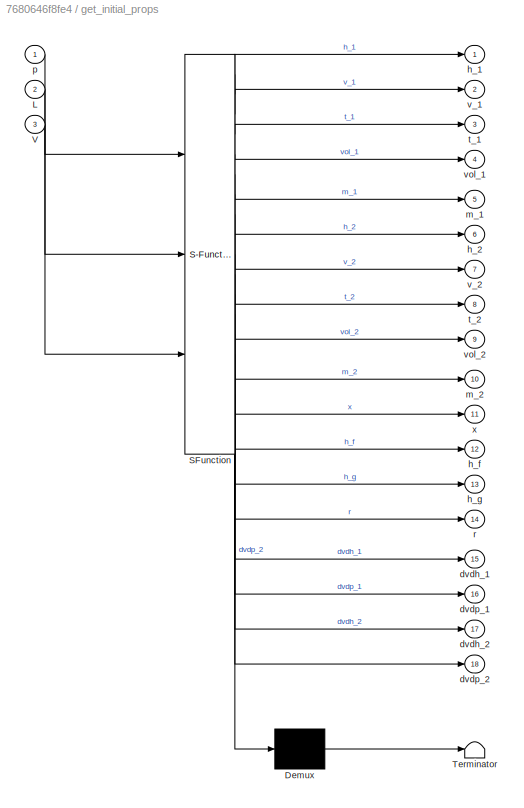
BLOCK [SubSystem] get_initial_props
  ErrorFcn = Stateflow.Translate.translate
  PermitHierarchicalResolution = ExplicitOnly
  Ports = [3, 18]
  RequestExecContextInheritance = off
  SFBlockType = MATLAB Function
  TreatAsAtomicUnit = on
  Variant = off
BLOCK [Demux] get_initial_props/ Demux 
  Outputs = 1
  Ports = [1, 1]
BLOCK [S-Function] get_initial_props/ SFunction 
  EnableBusSupport = on
  FunctionName = sf_sfun
  PortCounts = [3 19]
  Ports = [3, 19]
  SFcnIsStateOwnerBlock = off
  SFunctionDeploymentMode = off
  Tag = Stateflow S-Function acc_non_eq_v_0_1 2
BLOCK [Terminator] get_initial_props/ Terminator 
BLOCK [Inport] get_initial_props/L
  IconDisplay = Port number
  Port = 2
BLOCK [Inport] get_initial_props/V
  IconDisplay = Port number
  Port = 3
BLOCK [Outport] get_initial_props/dvdh_1
  IconDisplay = Port number
  Port = 15
BLOCK [Outport] get_initial_props/dvdh_2
  IconDisplay = Port number
  Port = 17
BLOCK [Outport] get_initial_props/dvdp_1
  IconDisplay = Port number
  Port = 16
BLOCK [Outport] get_initial_props/dvdp_2
  IconDisplay = Port number
  Port = 18
BLOCK [Outport] get_initial_props/h_1
  IconDisplay = Port number
BLOCK [Outport] get_initial_props/h_2
  IconDisplay = Port number
  Port = 6
BLOCK [Outport] get_initial_props/h_f
  IconDisplay = Port number
  Port = 12
BLOCK [Outport] get_initial_props/h_g
  IconDisplay = Port number
  Port = 13
BLOCK [Outport] get_initial_props/m_1
  IconDisplay = Port number
  Port = 5
BLOCK [Outport] get_initial_props/m_2
  IconDisplay = Port number
  Port = 10
BLOCK [Inport] get_initial_props/p
  IconDisplay = Port number
BLOCK [Outport] get_initial_props/r
  IconDisplay = Port number
  Port = 14
BLOCK [Outport] get_initial_props/t_1
  IconDisplay = Port number
  Port = 3
BLOCK [Outport] get_initial_props/t_2
  IconDisplay = Port number
  Port = 8
BLOCK [Outport] get_initial_props/v_1
  IconDisplay = Port number
  Port = 2
BLOCK [Outport] get_initial_props/v_2
  IconDisplay = Port number
  Port = 7
BLOCK [Outport] get_initial_props/vol_1
  IconDisplay = Port number
  Port = 4
BLOCK [Outport] get_initial_props/vol_2
  IconDisplay = Port number
  Port = 9
BLOCK [Outport] get_initial_props/x
  IconDisplay = Port number
  Port = 11
BLOCK [SubSystem] get_inlet_cond_1
  ErrorFcn = Stateflow.Translate.translate
  PermitHierarchicalResolution = ExplicitOnly
  Ports = [2, 2]
  RequestExecContextInheritance = off
  SFBlockType = MATLAB Function
  TreatAsAtomicUnit = on
  Variant = off
BLOCK [Demux] get_inlet_cond_1/ Demux 
  Outputs = 1
  Ports = [1, 1]
BLOCK [S-Function] get_inlet_cond_1/ SFunction 
  EnableBusSupport = on
  FunctionName = sf_sfun
  PortCounts = [2 3]
  Ports = [2, 3]
  SFcnIsStateOwnerBlock = off
  SFunctionDeploymentMode = off
  Tag = Stateflow S-Function acc_non_eq_v_0_1 3
BLOCK [Terminator] get_inlet_cond_1/ Terminator 
BLOCK [Outport] get_inlet_cond_1/h_1_in
  IconDisplay = Port number
BLOCK [Inport] get_inlet_cond_1/p
  IconDisplay = Port number
BLOCK [Outport] get_inlet_cond_1/t_1_in
  IconDisplay = Port number
  Port = 2
BLOCK [Inport] get_inlet_cond_1/t_sub
  IconDisplay = Port number
  Port = 2
BLOCK [SubSystem] get_inlet_cond_2
  ErrorFcn = Stateflow.Translate.translate
  PermitHierarchicalResolution = ExplicitOnly
  Ports = [2, 3]
  RequestExecContextInheritance = off
  SFBlockType = MATLAB Function
  TreatAsAtomicUnit = on
  Variant = off
BLOCK [Demux] get_inlet_cond_2/ Demux 
  Outputs = 1
  Ports = [1, 1]
BLOCK [S-Function] get_inlet_cond_2/ SFunction 
  EnableBusSupport = on
  FunctionName = sf_sfun
  PortCounts = [2 4]
  Ports = [2, 4]
  SFcnIsStateOwnerBlock = off
  SFunctionDeploymentMode = off
  Tag = Stateflow S-Function acc_non_eq_v_0_1 1
BLOCK [Terminator] get_inlet_cond_2/ Terminator 
BLOCK [Outport] get_inlet_cond_2/h_2_in
  IconDisplay = Port number
BLOCK [Inport] get_inlet_cond_2/p
  IconDisplay = Port number
BLOCK [Outport] get_inlet_cond_2/t_2_in
  IconDisplay = Port number
  Port = 2
BLOCK [Outport] get_inlet_cond_2/v_2_in
  IconDisplay = Port number
  Port = 3
BLOCK [Inport] get_inlet_cond_2/x
  IconDisplay = Port number
  Port = 2
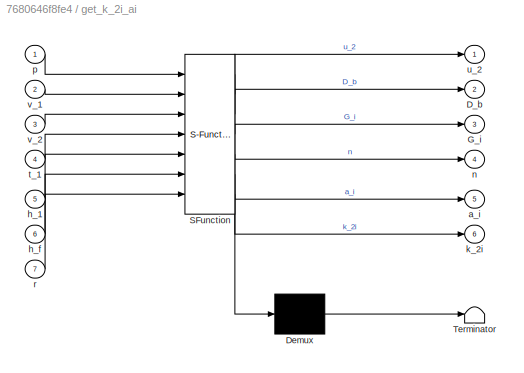
BLOCK [SubSystem] get_k_2i_ai
  ErrorFcn = Stateflow.Translate.translate
  PermitHierarchicalResolution = ExplicitOnly
  Ports = [7, 6]
  RequestExecContextInheritance = off
  SFBlockType = MATLAB Function
  TreatAsAtomicUnit = on
  Variant = off
BLOCK [Demux] get_k_2i_ai/ Demux 
  Outputs = 1
  Ports = [1, 1]
BLOCK [S-Function] get_k_2i_ai/ SFunction 
  EnableBusSupport = on
  FunctionName = sf_sfun
  PortCounts = [7 7]
  Ports = [7, 7]
  SFcnIsStateOwnerBlock = off
  SFunctionDeploymentMode = off
  Tag = Stateflow S-Function acc_non_eq_v_0_1 14
BLOCK [Terminator] get_k_2i_ai/ Terminator 
BLOCK [Outport] get_k_2i_ai/D_b
  IconDisplay = Port number
  Port = 2
BLOCK [Outport] get_k_2i_ai/G_i
  IconDisplay = Port number
  Port = 3
BLOCK [Outport] get_k_2i_ai/a_i
  IconDisplay = Port number
  Port = 5
BLOCK [Inport] get_k_2i_ai/h_1
  IconDisplay = Port number
  Port = 5
BLOCK [Inport] get_k_2i_ai/h_f
  IconDisplay = Port number
  Port = 6
BLOCK [Outport] get_k_2i_ai/k_2i
  IconDisplay = Port number
  Port = 6
BLOCK [Outport] get_k_2i_ai/n
  IconDisplay = Port number
  Port = 4
BLOCK [Inport] get_k_2i_ai/p
  IconDisplay = Port number
BLOCK [Inport] get_k_2i_ai/r
  IconDisplay = Port number
  Port = 7
BLOCK [Inport] get_k_2i_ai/t_1
  IconDisplay = Port number
  Port = 4
BLOCK [Outport] get_k_2i_ai/u_2
  IconDisplay = Port number
BLOCK [Inport] get_k_2i_ai/v_1
  IconDisplay = Port number
  Port = 2
BLOCK [Inport] get_k_2i_ai/v_2
  IconDisplay = Port number
  Port = 3
BLOCK [SubSystem] get_t_1
  ErrorFcn = Stateflow.Translate.translate
  PermitHierarchicalResolution = ExplicitOnly
  Ports = [2, 1]
  RequestExecContextInheritance = off
  SFBlockType = MATLAB Function
  TreatAsAtomicUnit = on
  Variant = off
BLOCK [Demux] get_t_1/ Demux 
  Outputs = 1
  Ports = [1, 1]
BLOCK [S-Function] get_t_1/ SFunction 
  EnableBusSupport = on
  FunctionName = sf_sfun
  PortCounts = [2 2]
  Ports = [2, 2]
  SFcnIsStateOwnerBlock = off
  SFunctionDeploymentMode = off
  Tag = Stateflow S-Function acc_non_eq_v_0_1 12
BLOCK [Terminator] get_t_1/ Terminator 
BLOCK [Inport] get_t_1/h
  IconDisplay = Port number
  Port = 2
BLOCK [Inport] get_t_1/p
  IconDisplay = Port number
BLOCK [Outport] get_t_1/t_1
  IconDisplay = Port number
BLOCK [SubSystem] get_t_2
  ErrorFcn = Stateflow.Translate.translate
  PermitHierarchicalResolution = ExplicitOnly
  Ports = [2, 1]
  RequestExecContextInheritance = off
  SFBlockType = MATLAB Function
  TreatAsAtomicUnit = on
  Variant = off
BLOCK [Demux] get_t_2/ Demux 
  Outputs = 1
  Ports = [1, 1]
BLOCK [S-Function] get_t_2/ SFunction 
  EnableBusSupport = on
  FunctionName = sf_sfun
  PortCounts = [2 2]
  Ports = [2, 2]
  SFcnIsStateOwnerBlock = off
  SFunctionDeploymentMode = off
  Tag = Stateflow S-Function acc_non_eq_v_0_1 13
BLOCK [Terminator] get_t_2/ Terminator 
BLOCK [Inport] get_t_2/h
  IconDisplay = Port number
  Port = 2
BLOCK [Inport] get_t_2/p
  IconDisplay = Port number
BLOCK [Outport] get_t_2/t_2
  IconDisplay = Port number
BLOCK [SubSystem] get_v_1
  ErrorFcn = Stateflow.Translate.translate
  PermitHierarchicalResolution = ExplicitOnly
  Ports = [2, 1]
  RequestExecContextInheritance = off
  SFBlockType = MATLAB Function
  TreatAsAtomicUnit = on
  Variant = off
BLOCK [Demux] get_v_1/ Demux 
  Outputs = 1
  Ports = [1, 1]
BLOCK [S-Function] get_v_1/ SFunction 
  EnableBusSupport = on
  FunctionName = sf_sfun
  PortCounts = [2 2]
  Ports = [2, 2]
  SFcnIsStateOwnerBlock = off
  SFunctionDeploymentMode = off
  Tag = Stateflow S-Function acc_non_eq_v_0_1 4
BLOCK [Terminator] get_v_1/ Terminator 
BLOCK [Inport] get_v_1/h
  IconDisplay = Port number
  Port = 2
BLOCK [Inport] get_v_1/p
  IconDisplay = Port number
BLOCK [Outport] get_v_1/v_1
  IconDisplay = Port number
BLOCK [SubSystem] get_v_2
  ErrorFcn = Stateflow.Translate.translate
  PermitHierarchicalResolution = ExplicitOnly
  Ports = [2, 1]
  RequestExecContextInheritance = off
  SFBlockType = MATLAB Function
  TreatAsAtomicUnit = on
  Variant = off
BLOCK [Demux] get_v_2/ Demux 
  Outputs = 1
  Ports = [1, 1]
BLOCK [S-Function] get_v_2/ SFunction 
  EnableBusSupport = on
  FunctionName = sf_sfun
  PortCounts = [2 2]
  Ports = [2, 2]
  SFcnIsStateOwnerBlock = off
  SFunctionDeploymentMode = off
  Tag = Stateflow S-Function acc_non_eq_v_0_1 5
BLOCK [Terminator] get_v_2/ Terminator 
BLOCK [Inport] get_v_2/h
  IconDisplay = Port number
  Port = 2
BLOCK [Inport] get_v_2/p
  IconDisplay = Port number
BLOCK [Outport] get_v_2/v_2
  IconDisplay = Port number
BLOCK [Scope] h_1 and h_2
  NumInputPorts = 2
  Ports = [2]
  ScopeSpecificationString = Simulink.scopes.TimeScopeBlockCfg('CurrentConfiguration', extmgr.ConfigurationSet(extmgr.Configuration('Core','General UI',true),extmgr.Configuration('Core','Source UI',true),extmgr.Configuration('Sources','WiredSimulink',true,'DataLoggingVariableName','ScopeData3','DataLoggingLimitDataPoints',true,'DataLoggingSaveFormat','Array','DataLoggingDecimation','1','DataLoggingDecimateData',true),extmgr.C...<+1513ch>
BLOCK [Scope] h_1 vs. h_f
  NumInputPorts = 2
  Ports = [2]
  ScopeSpecificationString = Simulink.scopes.TimeScopeBlockCfg('CurrentConfiguration', extmgr.ConfigurationSet(extmgr.Configuration('Core','General UI',true),extmgr.Configuration('Core','Source UI',true),extmgr.Configuration('Sources','WiredSimulink',true,'DataLoggingVariableName','ScopeData1','DataLoggingLimitDataPoints',true,'DataLoggingSaveFormat','Array','DataLoggingDecimation','1','DataLoggingDecimateData',true),extmgr.C...<+1591ch>
BLOCK [Display] h_1_0 Display
  Decimation = 1
  Format = long
  Ports = [1]
BLOCK [Display] h_1_f Display
  Decimation = 1
  Format = long
  Ports = [1]
BLOCK [Display] h_1_in Display
  Decimation = 1
  Ports = [1]
BLOCK [Scope] h_2 vs. h_g
  NumInputPorts = 2
  Ports = [2]
  ScopeSpecificationString = Simulink.scopes.TimeScopeBlockCfg('CurrentConfiguration', extmgr.ConfigurationSet(extmgr.Configuration('Core','General UI',true),extmgr.Configuration('Core','Source UI',true),extmgr.Configuration('Sources','WiredSimulink',true,'DataLoggingVariableName','ScopeData2','DataLoggingLimitDataPoints',true,'DataLoggingSaveFormat','Array','DataLoggingDecimation','1','DataLoggingDecimateData',true),extmgr.C...<+1591ch>
BLOCK [Display] h_2_0 Display
  Decimation = 1
  Format = long
  Ports = [1]
BLOCK [Display] h_2_f Display
  Decimation = 1
  Format = long
  Ports = [1]
BLOCK [Display] h_2_in Display
  Decimation = 1
  Ports = [1]
BLOCK [Display] h_f_0 Display
  Decimation = 1
  Format = long
  Ports = [1]
BLOCK [Display] h_f_f Display
  Decimation = 1
  Format = long
  Ports = [1]
BLOCK [Display] h_g_0 Display
  Decimation = 1
  Format = long
  Ports = [1]
BLOCK [Display] h_g_f Display
  Decimation = 1
  Format = long
  Ports = [1]
BLOCK [Display] k_2i Display
  Decimation = 1
  Ports = [1]
BLOCK [Scope] k_2i_ai Scope
  NumInputPorts = 1
  Ports = [1]
  ScopeSpecificationString = Simulink.scopes.TimeScopeBlockCfg('CurrentConfiguration', extmgr.ConfigurationSet(extmgr.Configuration('Core','General UI',true),extmgr.Configuration('Core','Source UI',true),extmgr.Configuration('Sources','WiredSimulink',true,'DataLoggingVariableName','ScopeData2'),extmgr.Configuration('Visuals','Time Domain',true,'SerializedDisplays',{struct('MinYLimReal','-0.09279','MaxYLimReal','0.83508','YLab...<+1396ch>
BLOCK [Display] k_2i_ai_in_kW Display
  Decimation = 1
  Ports = [1]
BLOCK [Display] m_1_0 Display
  Decimation = 1
  Format = short_e
  Ports = [1]
BLOCK [Display] m_1_f Display
  Decimation = 1
  Format = short_e
  Ports = [1]
BLOCK [Display] m_2_0 Display
  Decimation = 1
  Format = short_e
  Ports = [1]
BLOCK [Display] m_2_f Display
  Decimation = 1
  Format = short_e
  Ports = [1]
BLOCK [DiscretePulseGenerator] m_dot_1_in
  Amplitude = 0
  Period = 60
  Ports = [0, 1]
  PulseType = Time based
  PulseWidth = 50
BLOCK [DiscretePulseGenerator] m_dot_1_out
  Amplitude = 0
  Period = 60
  PhaseDelay = 30
  Ports = [0, 1]
  PulseType = Time based
  PulseWidth = 50
BLOCK [DiscretePulseGenerator] m_dot_2_in
  Amplitude = 2
  Period = 2800
  PhaseDelay = 900
  Ports = [0, 1]
  PulseType = Time based
  PulseWidth = 25
BLOCK [DiscretePulseGenerator] m_dot_2_out
  Amplitude = 2
  Period = 2800
  PhaseDelay = 100
  Ports = [0, 1]
  PulseType = Time based
  PulseWidth = 25
BLOCK [Display] n Display
  Decimation = 1
  Ports = [1]
BLOCK [Scope] p
  NumInputPorts = 1
  Ports = [1]
  ScopeSpecificationString = Simulink.scopes.TimeScopeBlockCfg('CurrentConfiguration', extmgr.ConfigurationSet(extmgr.Configuration('Core','General UI',true),extmgr.Configuration('Core','Source UI',true),extmgr.Configuration('Sources','WiredSimulink',true,'DataLoggingVariableName','ScopeData2'),extmgr.Configuration('Visuals','Time Domain',true,'SerializedDisplays',{struct('MinYLimReal','27.2749','MaxYLimReal','41.4139','YLabe...<+1434ch>
BLOCK [Display] p_0 Display
  Decimation = 1
  Format = long
  Ports = [1]
BLOCK [Display] p_f Display
  Decimation = 1
  Ports = [1]
BLOCK [Display] q_21 Display
  Decimation = 1
  Format = short_e
  Ports = [1]
BLOCK [Scope] q_21 Scope
  NumInputPorts = 1
  Ports = [1]
  ScopeSpecificationString = Simulink.scopes.TimeScopeBlockCfg('CurrentConfiguration', extmgr.ConfigurationSet(extmgr.Configuration('Core','General UI',true),extmgr.Configuration('Core','Source UI',true),extmgr.Configuration('Sources','WiredSimulink',true,'DataLoggingVariableName','ScopeData1'),extmgr.Configuration('Visuals','Time Domain',true,'SerializedDisplays',{struct('MinYLimReal','-1.00000','MaxYLimReal','1.00000','YLab...<+1393ch>
BLOCK [Display] r_0 Display
  Decimation = 1
  Format = long
  Ports = [1]
BLOCK [Display] r_f Display
  Decimation = 1
  Format = long
  Ports = [1]
BLOCK [Display] t_1_0 Display
  Decimation = 1
  Format = long
  Ports = [1]
BLOCK [Display] t_1_f Display
  Decimation = 1
  Format = long
  Ports = [1]
BLOCK [Display] t_1_in Display
  Decimation = 1
  Format = long
  Ports = [1]
BLOCK [Display] t_2_0 Display
  Decimation = 1
  Format = long
  Ports = [1]
BLOCK [Display] t_2_f Display
  Decimation = 1
  Format = long
  Ports = [1]
BLOCK [Display] t_2_in Display
  Decimation = 1
  Format = long
  Ports = [1]
BLOCK [Display] term_1 Display
  Decimation = 1
  Format = short_e
  Ports = [1]
BLOCK [Display] term_2 Display
  Decimation = 1
  Format = short_e
  Ports = [1]
BLOCK [Display] term_3 Display
  Decimation = 1
  Format = short_e
  Ports = [1]
BLOCK [Display] term_4 Display
  Decimation = 1
  Format = short_e
  Ports = [1]
BLOCK [Display] u_2 Display
  Decimation = 1
  Ports = [1]
BLOCK [Scope] v_1 and v_2
  NumInputPorts = 2
  Ports = [2]
  ScopeSpecificationString = Simulink.scopes.TimeScopeBlockCfg('CurrentConfiguration', extmgr.ConfigurationSet(extmgr.Configuration('Core','General UI',true),extmgr.Configuration('Core','Source UI',true),extmgr.Configuration('Sources','WiredSimulink',true,'DataLoggingVariableName','ScopeData4'),extmgr.Configuration('Visuals','Time Domain',true,'SerializedDisplays',{struct('MinYLimReal','-0.00464','MaxYLimReal','0.05462','YLab...<+1372ch>
BLOCK [Display] v_1_0 Display
  Decimation = 1
  Ports = [1]
BLOCK [Display] v_1_f Display
  Decimation = 1
  Ports = [1]
BLOCK [Display] v_2_0 Display
  Decimation = 1
  Ports = [1]
BLOCK [Display] v_2_f Display
  Decimation = 1
  Ports = [1]
BLOCK [Display] v_2_in Display
  Decimation = 1
  Ports = [1]
BLOCK [Scope] vol_1 and vol_2
  NumInputPorts = 3
  Ports = [3]
  ScopeSpecificationString = Simulink.scopes.TimeScopeBlockCfg('CurrentConfiguration', extmgr.ConfigurationSet(extmgr.Configuration('Core','General UI',true),extmgr.Configuration('Core','Source UI',true),extmgr.Configuration('Sources','WiredSimulink',true,'DataLoggingVariableName','ScopeData5','DataLoggingLimitDataPoints',true,'DataLoggingSaveFormat','Array','DataLoggingDecimation','1','DataLoggingDecimateData',true),extmgr.C...<+1891ch>
BLOCK [Display] vol_1_0 Display
  Decimation = 1
  Ports = [1]
BLOCK [Display] vol_1_f Display
  Decimation = 1
  Ports = [1]
BLOCK [Display] vol_2_0 Display
  Decimation = 1
  Format = long
  Ports = [1]
BLOCK [Display] vol_2_f Display
  Decimation = 1
  Ports = [1]
ANNOTATION (root): Accumulator Inlet Conditions
ANNOTATION (root): Display Center
ANNOTATION (root): dh_1dt
ANNOTATION (root): dh_2dt
ANNOTATION (root): dpdt
ANNOTATION (root): m_dot_1 and m_dot_2
ANNOTATION (root): m_dot_1b and m_dot_2b
ANNOTATION (root): m_dot_pt_1 and m_dot_pt_2
ANNOTATION (root): mh_dot_1b and mh_dot_2b
ANNOTATION (root): q_21
LINE Abs:1 -> Product6:1
NET Acc Initial Level:1 -> Bus Creator:2, Initial Level Display:1, get_initial_props:2
NET Acc Initial Press:1 -> Bus Creator:1, Initial Press Display:1, get_initial_props:1
NET Acc Volume:1 -> Acc Volume Display:1, Bus Creator:3, get_initial_props:3
LINE Add10:1 -> Product16:2
LINE Add11:1 -> Divide1:2
LINE Add12:1 -> Divide2:2
LINE Add13:1 -> Divide3:2
LINE Add14:1 -> Product19:1
LINE Add15:1 -> Product22:1
LINE Add16:1 -> vol_1 and vol_2:3
LINE Add17:1 -> Product33:2
LINE Add18:1 -> Product34:2
NET Add19:1 -> Display16:1, Scope11:1
NET Add1:1 -> Bus Creator2:5, Scope3:1
LINE Add20:1 -> Sum5:1
LINE Add21:1 -> Sum5:2
LINE Add22:1 -> Subtract5:2
LINE Add23:1 -> Sum6:1
LINE Add24:1 -> Sum6:2
LINE Add25:1 -> Subtract6:2
NET Add2:1 -> Bus Creator4:1, Display6:1, Scope4:1
NET Add3:1 -> Bus Creator4:2, Display7:1, Scope4:2
LINE Add4:1 -> Switch6:1
NET Add5:1 -> Abs:1, Switch11:2, Switch12:2
NET Add6:1 -> Bus Creator6:1, Display:1, Scope5:1
NET Add7:1 -> Bus Creator6:2, Display1:1, Scope5:2
LINE Add8:1 -> Divide1:1
LINE Add9:1 -> Product14:1
NET Add:1 -> Bus Creator2:2, Scope2:1
LINE Bus Creator10:1 -> Goto10:1
LINE Bus Creator1:1 -> Goto1:1
LINE Bus Creator2:1 -> Goto2:1
LINE Bus Creator3:1 -> Goto3:1
LINE Bus Creator4:1 -> Goto4:1
LINE Bus Creator5:1 -> Goto5:1
LINE Bus Creator6:1 -> Goto6:1
LINE Bus Creator7:1 -> Goto7:1
LINE Bus Creator8:1 -> Goto8:1
LINE Bus Creator9:1 -> Goto9:1
LINE Bus Creator:1 -> Goto:1
NET Bus Selector10:1 -> Relational Operator:1, Subtract4:1
LINE Bus Selector10:2 -> get_k_2i_ai:3
LINE Bus Selector11:1 -> Compare To Zero:1
NET Bus Selector12:1 -> Relational Operator:2, Subtract4:2, get_k_2i_ai:4
LINE Bus Selector12:2 -> Product12:2
LINE Bus Selector12:3 -> get_k_2i_ai:1
LINE Bus Selector12:4 -> get_k_2i_ai:2
LINE Bus Selector12:5 -> get_k_2i_ai:5
LINE Bus Selector12:6 -> get_k_2i_ai:6
LINE Bus Selector12:7 -> get_k_2i_ai:7
NET Bus Selector13:1 -> Product13:2, Product15:1
LINE Bus Selector13:2 -> Product14:2
LINE Bus Selector13:3 -> Product16:1
LINE Bus Selector14:1 -> Add9:1
LINE Bus Selector14:2 -> Add10:1
LINE Bus Selector15:1 -> Product13:1
LINE Bus Selector15:2 -> Product15:2
NET Bus Selector16:1 -> Add10:3, Add9:3
NET Bus Selector17:1 -> Add14:1, Display10:1
NET Bus Selector17:2 -> Display11:1, Product17:1
NET Bus Selector17:3 -> Display12:1, Product17:2
LINE Bus Selector17:4 -> Product19:2
LINE Bus Selector17:5 -> Add15:1
LINE Bus Selector17:6 -> Product20:1
LINE Bus Selector17:7 -> Product20:2
LINE Bus Selector17:8 -> Product22:2
LINE Bus Selector18:1 -> Integrator2:1
LINE Bus Selector19:1 -> Product23:1
NET Bus Selector19:2 -> Divide2:1, Product24:3
LINE Bus Selector19:3 -> Product24:1
LINE Bus Selector19:4 -> Product25:1
LINE Bus Selector1:1 -> Product:2
LINE Bus Selector1:2 -> Product2:1
LINE Bus Selector1:3 -> Product1:2
LINE Bus Selector1:4 -> Product3:1
NET Bus Selector20:1 -> Add12:1, Scope14:1
LINE Bus Selector21:1 -> Product23:2
NET Bus Selector22:1 -> Add12:3, Scope14:3
LINE Bus Selector23:1 -> Product24:2
LINE Bus Selector24:1 -> Product25:2
LINE Bus Selector25:1 -> Integrator3:1
LINE Bus Selector26:1 -> Product26:1
NET Bus Selector26:2 -> Divide3:1, Product27:1
LINE Bus Selector26:3 -> Product27:2
LINE Bus Selector26:4 -> Product28:1
NET Bus Selector27:1 -> Add13:1, Scope12:1
LINE Bus Selector28:1 -> Product26:2
NET Bus Selector29:1 -> Add13:3, Gain:1
LINE Bus Selector2:1 -> Product2:2
LINE Bus Selector2:2 -> Product3:2
LINE Bus Selector30:1 -> Product27:3
LINE Bus Selector31:1 -> Product28:2
LINE Bus Selector32:1 -> Integrator4:1
LINE Bus Selector33:1 -> p:1
NET Bus Selector33:2 -> h_1 and h_2:1, h_1 vs. h_f:1
NET Bus Selector33:3 -> h_1 and h_2:2, h_2 vs. h_g:1
LINE Bus Selector33:4 -> v_1 and v_2:1
LINE Bus Selector33:5 -> v_1 and v_2:2
NET Bus Selector33:6 -> Add16:2, vol_1 and vol_2:1
NET Bus Selector33:7 -> Add16:1, vol_1 and vol_2:2
LINE Bus Selector33:8 -> h_1 vs. h_f:2
LINE Bus Selector33:9 -> h_2 vs. h_g:2
LINE Bus Selector34:1 -> Product29:1
LINE Bus Selector34:2 -> Product30:1
LINE Bus Selector34:3 -> Product33:1
LINE Bus Selector34:4 -> Product31:1
LINE Bus Selector34:5 -> Product32:1
LINE Bus Selector34:6 -> Product34:1
LINE Bus Selector34:7 -> Product35:1
LINE Bus Selector34:8 -> Product36:1
LINE Bus Selector35:1 -> Product29:2
LINE Bus Selector35:2 -> Product30:2
NET Bus Selector36:1 -> Product31:2, Product35:2
LINE Bus Selector37:1 -> Product32:2
LINE Bus Selector38:1 -> Product36:2
LINE Bus Selector39:1 -> Add20:1
LINE Bus Selector39:2 -> Add20:2
LINE Bus Selector3:1 -> Product:1
LINE Bus Selector3:2 -> Product1:1
LINE Bus Selector40:1 -> Add22:1
LINE Bus Selector40:2 -> Add22:2
LINE Bus Selector41:1 -> Integrator5:1
LINE Bus Selector41:2 -> Integrator6:1
LINE Bus Selector42:1 -> Product37:1
LINE Bus Selector42:2 -> Product37:2
LINE Bus Selector42:3 -> Product38:1
LINE Bus Selector42:4 -> Product38:2
LINE Bus Selector43:1 -> Product39:1
LINE Bus Selector43:2 -> Product39:2
LINE Bus Selector43:3 -> Product40:1
LINE Bus Selector43:4 -> Product40:2
LINE Bus Selector44:1 -> Integrator7:1
LINE Bus Selector44:2 -> Integrator8:1
LINE Bus Selector4:1 -> Add5:1
LINE Bus Selector4:2 -> Add5:2
LINE Bus Selector4:3 -> Product6:2
LINE Bus Selector4:4 -> Product7:1
NET Bus Selector5:1 -> Add6:1, Display2:1
NET Bus Selector5:2 -> Add7:1, Display3:1
NET Bus Selector6:1 -> Add6:2, Display4:1
NET Bus Selector6:2 -> Add7:2, Display5:1
LINE Bus Selector7:1 -> Integrator:1
LINE Bus Selector7:2 -> Integrator1:1
LINE Bus Selector8:1 -> Product8:1
LINE Bus Selector8:2 -> Product8:2
LINE Bus Selector8:3 -> Subtract2:2
LINE Bus Selector8:4 -> Product10:1
LINE Bus Selector8:5 -> Product10:2
LINE Bus Selector8:6 -> Subtract3:2
LINE Bus Selector9:1 -> Product9:1
LINE Bus Selector9:2 -> Product11:1
NET Bus Selector:1 -> Sum:1, p_0 Display:1
NET Bus Selector:10 -> Switch4:3, h_f_0 Display:1
NET Bus Selector:11 -> Switch5:3, h_g_0 Display:1
NET Bus Selector:12 -> Switch6:3, r_0 Display:1
NET Bus Selector:13 -> Switch7:3, dvdh_1_0 Display:1
NET Bus Selector:14 -> Switch8:3, dvdh_2_0 Display:1
NET Bus Selector:15 -> Switch9:3, dvdp_1_0 Display:1
NET Bus Selector:16 -> Switch10:3, dvdp_2_0 Display:1
NET Bus Selector:17 -> Switch13:3, t_1_0 Display:1
NET Bus Selector:18 -> Switch14:3, t_2_0 Display:1
NET Bus Selector:2 -> Sum1:1, h_1_0 Display:1
NET Bus Selector:3 -> Switch:3, v_1_0 Display:1
NET Bus Selector:4 -> Sum2:1, m_1_0 Display:1
NET Bus Selector:5 -> Switch2:3, vol_1_0 Display:1
NET Bus Selector:6 -> Sum3:1, h_2_0 Display:1
NET Bus Selector:7 -> Switch1:3, v_2_0 Display:1
NET Bus Selector:8 -> Sum4:1, m_2_0 Display:1
NET Bus Selector:9 -> Switch3:3, vol_2_0 Display:1
NET Clock:1 -> Switch10:2, Switch13:2, Switch14:2, Switch1:2, Switch2:2, Switch3:2, Switch4:2, Switch5:2, Switch6:2, Switch7:2, Switch8:2, Switch9:2, Switch:2
LINE Compare To Zero:1 -> Logical Operator:2
LINE Constant1:1 -> Switch11:3
LINE Constant2:1 -> Switch15:3
LINE Constant:1 -> Switch12:1
NET Divide1:1 -> Bus Creator8:2, Gain3:1
NET Divide2:1 -> Bus Creator9:1, Display13:1, Scope9:1
NET Divide3:1 -> Bus Creator10:1, Display15:1, Scope10:1
NET Divide:1 -> Switch11:1, Switch12:3
LINE FW Subcooling:1 -> get_inlet_cond_1:2
LINE From10:1 -> Bus Selector7:1
LINE From11:1 -> Bus Selector14:1
NET From12:1 -> Bus Selector13:1, Bus Selector17:1, Bus Selector8:1
LINE From13:1 -> Bus Selector9:1
LINE From14:1 -> Bus Selector11:1
LINE From15:1 -> Bus Selector12:1
LINE From16:1 -> Bus Selector36:1
LINE From17:1 -> Bus Selector15:1
LINE From18:1 -> Bus Selector16:1
LINE From1:1 -> Bus Selector34:1
LINE From20:1 -> Bus Selector18:1
LINE From21:1 -> Bus Selector19:1
LINE From22:1 -> Bus Selector20:1
LINE From23:1 -> Bus Selector21:1
LINE From24:1 -> Bus Selector22:1
LINE From25:1 -> Bus Selector23:1
LINE From26:1 -> Bus Selector24:1
LINE From27:1 -> Bus Selector25:1
LINE From28:1 -> Bus Selector26:1
LINE From29:1 -> Bus Selector27:1
LINE From2:1 -> Bus Selector35:1
LINE From30:1 -> Bus Selector28:1
LINE From31:1 -> Bus Selector29:1
LINE From32:1 -> Bus Selector30:1
LINE From33:1 -> Bus Selector31:1
LINE From34:1 -> Bus Selector32:1
LINE From35:1 -> Bus Selector33:1
LINE From36:1 -> Bus Selector37:1
LINE From37:1 -> Bus Selector38:1
LINE From38:1 -> Bus Selector39:1
LINE From39:1 -> Bus Selector40:1
LINE From3:1 -> Bus Selector1:1
LINE From40:1 -> Bus Selector41:1
LINE From41:1 -> Bus Selector42:1
LINE From42:1 -> Bus Selector43:1
LINE From43:1 -> Bus Selector44:1
LINE From4:1 -> Bus Selector2:1
LINE From5:1 -> Bus Selector3:1
LINE From6:1 -> Bus Selector5:1
LINE From7:1 -> Bus Selector4:1
LINE From8:1 -> Bus Selector6:1
LINE From9:1 -> Bus Selector10:1
LINE From:1 -> Bus Selector:1
LINE Gain1:1 -> Add14:2
LINE Gain2:1 -> Add15:2
NET Gain3:1 -> Bus Creator8:1, Display14:1, Scope8:1
NET Gain4:1 -> Add12:4, Scope14:4
NET Gain5:1 -> Add13:4, Scope12:4
LINE Gain6:1 -> Scope12:5
LINE Gain7:1 -> Scope14:5
LINE Gain:1 -> Scope12:3
LINE Integrator1:1 -> Sum4:2
LINE Integrator2:1 -> Sum:2
LINE Integrator3:1 -> Sum1:2
LINE Integrator4:1 -> Sum3:2
LINE Integrator5:1 -> Add21:1
LINE Integrator6:1 -> Add21:2
LINE Integrator7:1 -> Add24:1
LINE Integrator8:1 -> Add24:2
LINE Integrator:1 -> Sum2:2
LINE Logical Operator:1 -> Switch15:2
LINE Product10:1 -> Subtract3:1
NET Product11:1 -> Add8:2, Scope15:2, term_2 Display:1
LINE Product12:1 -> Product21:2
LINE Product13:1 -> Add9:2
NET Product14:1 -> Add8:3, Scope15:3, term_3 Display:1
LINE Product15:1 -> Add10:2
NET Product16:1 -> Add8:4, Scope15:4, term_4 Display:1
LINE Product17:1 -> Gain1:1
LINE Product18:1 -> W to KW:1
NET Product19:1 -> Add11:1, Display8:1, Scope16:1
LINE Product1:1 -> Add3:1
LINE Product20:1 -> Gain2:1
LINE Product21:1 -> Switch15:1
NET Product22:1 -> Add11:2, Display9:1, Scope16:2
NET Product23:1 -> Add12:2, Scope14:2
LINE Product24:1 -> Gain4:1
NET Product25:1 -> Add12:5, Gain7:1
NET Product26:1 -> Add13:2, Scope12:2
LINE Product27:1 -> Gain5:1
NET Product28:1 -> Add13:5, Gain6:1
LINE Product29:1 -> Add19:1
LINE Product2:1 -> Add2:2
LINE Product30:1 -> Add19:2
LINE Product31:1 -> Add17:1
LINE Product32:1 -> Add17:2
LINE Product33:1 -> Add19:3
LINE Product34:1 -> Add19:4
LINE Product35:1 -> Add18:1
LINE Product36:1 -> Add18:2
LINE Product37:1 -> Add23:1
LINE Product38:1 -> Add23:2
LINE Product39:1 -> Add25:1
LINE Product3:1 -> Add3:2
LINE Product40:1 -> Add25:2
LINE Product4:1 -> Switch2:1
LINE Product5:1 -> Switch3:1
LINE Product6:1 -> Divide:1
LINE Product7:1 -> Divide:2
LINE Product8:1 -> Subtract2:1
NET Product9:1 -> Add8:1, Scope15:1, term_1 Display:1
LINE Product:1 -> Add2:1
LINE Relational Operator:1 -> Logical Operator:1
NET SG Pressure:1 -> get_inlet_cond_1:1, get_inlet_cond_2:1
LINE SG Quality:1 -> get_inlet_cond_2:2
NET Subtract1:1 -> Bus Creator5:2, Scope7:2
LINE Subtract2:1 -> Product9:2
LINE Subtract3:1 -> Product11:2
LINE Subtract4:1 -> Product12:1
LINE Subtract5:1 -> Scope17:1
LINE Subtract6:1 -> Scope18:1
NET Subtract:1 -> Bus Creator5:1, Scope7:1
NET Sum1:1 -> Bus Creator3:2, get_dvdh_1:2, get_dvdp_1:2, get_t_1:2, get_v_1:2, h_1_f Display:1
NET Sum2:1 -> Bus Creator3:4, Product4:2, m_1_f Display:1
NET Sum3:1 -> Bus Creator3:6, get_dvdh_2:2, get_dvdp_2:2, get_t_2:2, get_v_2:2, h_2_f Display:1
NET Sum4:1 -> Bus Creator3:8, Product5:2, m_2_f Display:1
LINE Sum5:1 -> Subtract5:1
LINE Sum6:1 -> Subtract6:1
NET Sum:1 -> Bus Creator3:1, get_dvdh_1:1, get_dvdh_2:1, get_dvdp_1:1, get_dvdp_2:1, get_h_f:1, get_h_g:1, get_t_1:1, get_t_2:1, get_v_1:1, get_v_2:1, p_f Display:1
NET Switch10:1 -> Bus Creator3:16, dvdp_2_f Display:1
NET Switch11:1 -> Scope6:1, Subtract1:1, Subtract:1
NET Switch12:1 -> Scope6:2, Subtract1:2, Subtract:2
NET Switch13:1 -> Bus Creator3:17, t_1_f Display:1
NET Switch14:1 -> Bus Creator3:18, t_2_f Display:1
NET Switch15:1 -> Bus Creator7:1, q_21 Display:1, q_21 Scope:1
NET Switch1:1 -> Bus Creator3:7, Product5:1, v_2_f Display:1
NET Switch2:1 -> Bus Creator3:5, vol_1_f Display:1
NET Switch3:1 -> Bus Creator3:9, vol_2_f Display:1
NET Switch4:1 -> Add4:2, Bus Creator3:10, h_f_f Display:1
NET Switch5:1 -> Add4:1, Bus Creator3:11, h_g_f Display:1
NET Switch6:1 -> Bus Creator3:12, r_f Display:1
NET Switch7:1 -> Bus Creator3:13, dvdh_1_f Display:1
NET Switch8:1 -> Bus Creator3:14, dvdh_2_f Display:1
NET Switch9:1 -> Bus Creator3:15, dvdp_1_f Display:1
NET Switch:1 -> Bus Creator3:3, Product4:1, v_1_f Display:1
LINE Tau:1 -> Product7:2
NET W to KW:1 -> Product21:1, k_2i_ai Scope:1, k_2i_ai_in_kW Display:1
LINE get_dvdh_1:1 -> Switch7:1
LINE get_dvdh_2:1 -> Switch8:1
LINE get_dvdp_1:1 -> Switch9:1
LINE get_dvdp_2:1 -> Switch10:1
LINE get_h_f:1 -> Switch4:1
LINE get_h_g:1 -> Switch5:1
NET get_initial_props:1 -> Bus Creator:4, Initial h_1 Display:1
NET get_initial_props:10 -> Bus Creator:13, Initial m_2 Display:1
NET get_initial_props:11 -> Bus Creator:14, Initial x Display:1
NET get_initial_props:12 -> Bus Creator:15, Initial h_f Display:1
NET get_initial_props:13 -> Bus Creator:16, Initial h_g Display:1
NET get_initial_props:14 -> Bus Creator:17, Initial r Display:1
NET get_initial_props:15 -> Bus Creator:18, Initial dvdh_1 Display:1
NET get_initial_props:16 -> Bus Creator:19, Initial dvdp_1 Display:1
NET get_initial_props:17 -> Bus Creator:20, Initial dvdh_2 Display:1
NET get_initial_props:18 -> Bus Creator:21, Initial dvdp_2 Display:1
NET get_initial_props:2 -> Bus Creator:5, Initial v_1 Display:1
NET get_initial_props:3 -> Bus Creator:6, Initial t_1 Display:1
NET get_initial_props:4 -> Bus Creator:7, Initial vol_1 Display:1
NET get_initial_props:5 -> Bus Creator:8, Initial m_1 Display:1
NET get_initial_props:6 -> Bus Creator:9, Initial h_2 Display:1
NET get_initial_props:7 -> Bus Creator:10, Initial v_2 Display:1
NET get_initial_props:8 -> Bus Creator:11, Initial t_2 Display:1
NET get_initial_props:9 -> Bus Creator:12, Initial vol_2 Display:1
NET get_inlet_cond_1:1 -> Bus Creator1:1, h_1_in Display:1
NET get_inlet_cond_1:2 -> Bus Creator1:2, t_1_in Display:1
NET get_inlet_cond_2:1 -> Bus Creator1:3, h_2_in Display:1
NET get_inlet_cond_2:2 -> Bus Creator1:4, t_2_in Display:1
NET get_inlet_cond_2:3 -> Bus Creator1:5, v_2_in Display:1
LINE get_k_2i_ai:1 -> u_2 Display:1
LINE get_k_2i_ai:2 -> D_b Display:1
LINE get_k_2i_ai:3 ->  G_i Display:1
LINE get_k_2i_ai:4 -> n Display:1
NET get_k_2i_ai:5 -> Product18:1, a_i Display:1
NET get_k_2i_ai:6 -> Product18:2, k_2i Display:1
LINE get_t_1:1 -> Switch13:1
LINE get_t_2:1 -> Switch14:1
LINE get_v_1:1 -> Switch:1
LINE get_v_2:1 -> Switch1:1
NET m_dot_1_in:1 -> Add:1, Bus Creator2:1, Scope:1
NET m_dot_1_out:1 -> Add:2, Bus Creator2:3, Scope:2
NET m_dot_2_in:1 -> Add1:1, Bus Creator2:4, Scope13:1, Scope1:1
NET m_dot_2_out:1 -> Add1:2, Bus Creator2:6, Scope1:2
note: NET lines group one-source signal fan-out (src -> all destinations, sorted); 1:1 wires keep LINE
CHART get_inlet_cond_2 states=1 transitions=1
  STATE_LABEL 'eML_blk_kernel()'
  STATE_LABEL "SCRIPT:\nfunction [h_2_in, t_2_in, v_2_in] = inlet_cond_2(p, x)\ncoder.extrinsic('XSteam');\nh_2_in = 0.0;\nt_2_in = 0.0;\nv_2_in = 0.0;\nv_f = 0.0;\nv_g = 0.0;\nh_2_in = XSteam('h_px', p, x);\nt_2_in = XSteam('Tsat_p', p);\nv_f = XSteam('vL_p', p);\nv_g = XSteam('vV_p', p);\nv_2_in = v_f + x * v_g;"
CHART get_initial_props states=1 transitions=1
  STATE_LABEL 'eML_blk_kernel()'
  STATE_LABEL "SCRIPT:\nfunction [h_1, v_1, t_1, vol_1, m_1, h_2, v_2, t_2, vol_2, m_2, x, h_f, h_g, r, dvdh_1, dvdp_1, dvdh_2, dvdp_2] = init_props(p, L, V)\ncoder.extrinsic('XSteam');\ncoder.extrinsic('IAPWS_IF97');\nEPSILON = 0.02;\nMPA_PER_BAR = 0.1;\nh_1 = 0.0;\nv_1 = 0.0;\nt_1 = 0.0;\nvol_1 = 0.0;\nm_1 = 0.0;\nh_2 = 0.0;\nv_2 = 0.0;\nt_2 = 0.0;\nvol_2 = 0.0;\nm_2 = 0.0;\nx = 0.0;\nh_f = 0.0;\nh_g = 0.0;\nr = 0.0;\ndvdh_1 = 0....<+620ch>"
CHART get_inlet_cond_1 states=1 transitions=1
  STATE_LABEL 'eML_blk_kernel()'
  STATE_LABEL "SCRIPT:\nfunction [h_1_in, t_1_in] = inlet_cond_1(p, t_sub)\ncoder.extrinsic('XSteam');\nh_1_in = 0.0;\nt_1_in = 0.0;\nt_1_in = XSteam('Tsat_p', p);\nt_1_in = t_1_in - t_sub;\nh_1_in = XSteam('h_pT', p, t_1_in);\n"
CHART get_v_1 states=1 transitions=1
  STATE_LABEL 'eML_blk_kernel()'
  STATE_LABEL "SCRIPT:\nfunction v_1 = v_ph(p, h)\ncoder.extrinsic('XSteam');\nv_1 = 0.0;\nv_1 = XSteam('v_ph', p, h);\n"
CHART get_v_2 states=1 transitions=1
  STATE_LABEL 'eML_blk_kernel()'
  STATE_LABEL "SCRIPT:\nfunction v_2 = v_ph(p, h)\ncoder.extrinsic('XSteam');\nv_2 = 0.0;\nv_2 = XSteam('v_ph', p, h);\n"
CHART get_h_f states=1 transitions=1
  STATE_LABEL 'eML_blk_kernel()'
  STATE_LABEL "SCRIPT:\nfunction h_f = hL_p(p)\ncoder.extrinsic('XSteam');\nh_f = 0.0;\nh_f = XSteam('hL_p', p);\n"
CHART get_h_g states=1 transitions=1
  STATE_LABEL 'eML_blk_kernel()'
  STATE_LABEL "SCRIPT:\nfunction h_g = hV_p(p)\ncoder.extrinsic('XSteam');\nh_g = 0.0;\nh_g = XSteam('hV_p', p);\n"
CHART get_dvdh_1 states=1 transitions=1
  STATE_LABEL 'eML_blk_kernel()'
  STATE_LABEL "SCRIPT:\nfunction dvdh_1 = dvdh_ph(p, h)\ncoder.extrinsic('IAPWS_IF97');\nMPA_PER_BAR = 0.1;\ndvdh_1 = 0.0;\ndvdh_1 = IAPWS_IF97('dvdh_ph', p * MPA_PER_BAR, h);"
CHART get_dvdh_2 states=1 transitions=1
  STATE_LABEL 'eML_blk_kernel()'
  STATE_LABEL "SCRIPT:\nfunction dvdh_2 = dvdh_ph(p, h)\ncoder.extrinsic('IAPWS_IF97');\nMPA_PER_BAR = 0.1;\ndvdh_2 = 0.0;\ndvdh_2 = IAPWS_IF97('dvdh_ph', p * MPA_PER_BAR, h);"
CHART get_dvdp_1 states=1 transitions=1
  STATE_LABEL 'eML_blk_kernel()'
  STATE_LABEL "SCRIPT:\nfunction dvdp_1 = dvdp_ph(p, h)\ncoder.extrinsic('IAPWS_IF97');\nMPA_PER_BAR = 0.1;\ndvdp_1 = 0.0;\ndvdp_1 = IAPWS_IF97('dvdp_ph', p * MPA_PER_BAR, h);"
CHART get_dvdp_2 states=1 transitions=1
  STATE_LABEL 'eML_blk_kernel()'
  STATE_LABEL "SCRIPT:\nfunction dvdp_2 = dvdp_ph(p, h)\ncoder.extrinsic('IAPWS_IF97');\nMPA_PER_BAR = 0.1;\ndvdp_2 = 0.0;\ndvdp_2 = IAPWS_IF97('dvdp_ph', p * MPA_PER_BAR, h);"
CHART get_t_1 states=1 transitions=1
  STATE_LABEL 'eML_blk_kernel()'
  STATE_LABEL "SCRIPT:\nfunction t_1 = T_ph(p, h)\ncoder.extrinsic('XSteam');\nh_f = 0.0;\nt_1 = 0.0;\nh_f = XSteam('hL_p', p);\nif(h < h_f)\n    t_1 = XSteam('T_ph', p, h);\nelse\n    t_1 = XSteam('Tsat_p', p);\nend\n"
CHART get_t_2 states=1 transitions=1
  STATE_LABEL 'eML_blk_kernel()'
  STATE_LABEL "SCRIPT:\nfunction t_2 = T_ph(p, h)\ncoder.extrinsic('XSteam');\nh_g = 0.0;\nt_2 = 0.0;\nh_g = XSteam('hV_p', p);\nif(h > h_g)\n    t_2 = XSteam('T_ph', p, h);\nelse\n    t_2 = XSteam('Tsat_p', p);\nend\n"
CHART get_k_2i_ai states=1 transitions=1
  STATE_LABEL 'eML_blk_kernel()'
  STATE_LABEL "SCRIPT:\nfunction [u_2, D_b, G_i, n, a_i, k_2i]= k_2i_a_i(p, v_1, v_2, t_1, h_1, h_f, r)\ncoder.extrinsic('XSteam');\nrho_1 = 0.0;\nrho_2 = 0.0;\nst = 0.0;\nu_2 = 0.0;\nD_b = 0.0;\nG_i = 0.0;\nn = 0.0;\na_i = 0.0;\ntcv_2 = 0.0;\nk_2i = 0.0;\ng = 9.8;\nW_e_cr = 1.24;\nk_B = 1.38064852e-23;\nrho_1 = 1 / v_1;\nrho_2 = 1 / v_2;\nst = XSteam('st_p', p);\nu_2 = 1.4 * (st * g * (rho_1 - rho_2) / (rho_1^2))^(1/4);\nD_b = W_e...<+248ch>"
